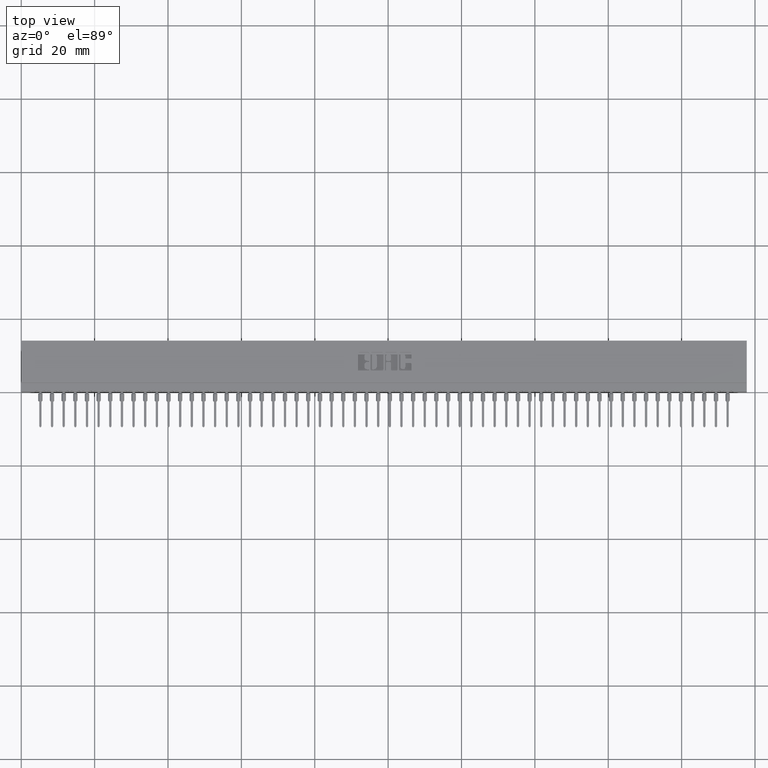
[diagram: clean part render]
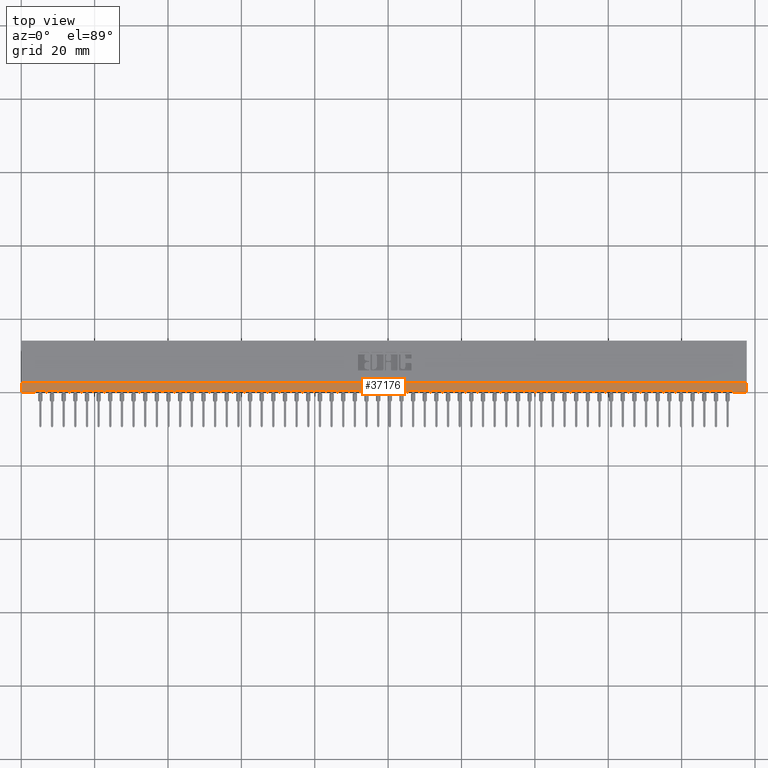
[diagram: same view with one face highlighted and labeled with its STEP entity id]
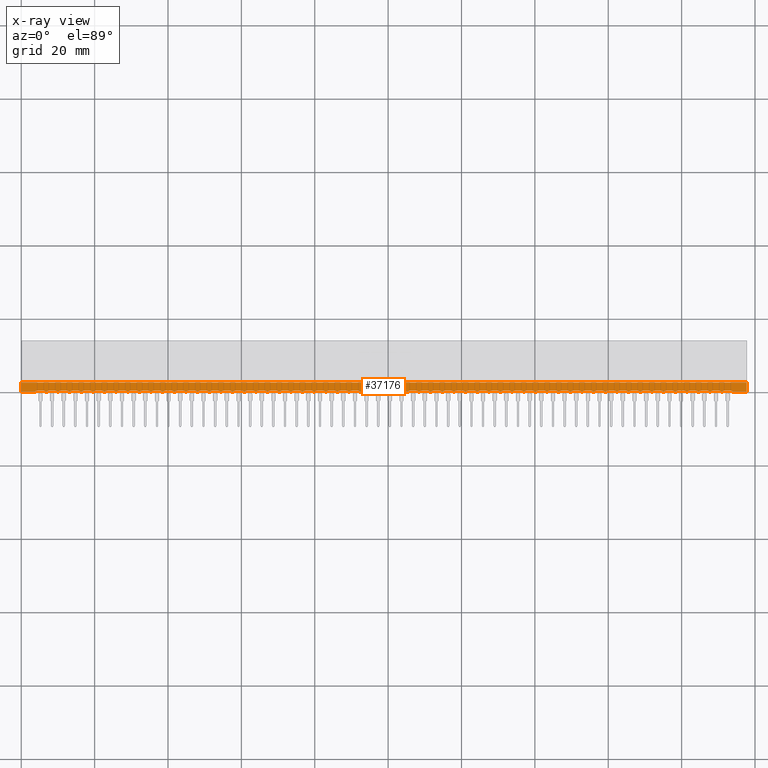
[diagram: x-ray of the same camera — body ghosted, the highlighted face saturated]
A machine part, top view. The second image highlights one B-rep face of the part: STEP entity #37176.
The next image is the same camera in x-ray: the body ghosted, the highlighted face saturated — about 0% of this face is hidden behind the body in this view.
In plain terms, the highlighted planar face has unit normal (0, 0, -1).
Its self-contained STEP definition (entity closure, byte-faithful):
#22 = CARTESIAN_POINT ( 'NONE',  ( 2.252499999999999503, 0.01499999999999997169, -0.02500000000000000486 ) ) ;
#77 = DIRECTION ( 'NONE',  ( 1.000000000000000000, -0.0000000000000000000, -2.307304048702925122E-16 ) ) ;
#232 = LINE ( 'NONE', #47931, #41931 ) ;
#246 = DIRECTION ( 'NONE',  ( 1.000000000000000000, 0.0000000000000000000, 0.0000000000000000000 ) ) ;
#256 = CIRCLE ( 'NONE', #34420, 0.01499999999999970281 ) ;
#302 = CARTESIAN_POINT ( 'NONE',  ( 0.2524999999999996692, 0.01499999999999997169, -0.02500000000000000486 ) ) ;
#621 = DIRECTION ( 'NONE',  ( -0.0000000000000000000, 0.0000000000000000000, 1.000000000000000000 ) ) ;
#746 = ORIENTED_EDGE ( 'NONE', *, *, #25358, .T. ) ;
#779 = VERTEX_POINT ( 'NONE', #11167 ) ;
#788 = DIRECTION ( 'NONE',  ( 1.000000000000000000, -0.0000000000000000000, -2.307304048702925122E-16 ) ) ;
#793 = AXIS2_PLACEMENT_3D ( 'NONE', #58698, #85410, #85858 ) ;
#1075 = DIRECTION ( 'NONE',  ( -0.0000000000000000000, 0.0000000000000000000, 1.000000000000000000 ) ) ;
#1093 = VERTEX_POINT ( 'NONE', #16327 ) ;
#1281 = VERTEX_POINT ( 'NONE', #56369 ) ;
#1386 = EDGE_CURVE ( 'NONE', #13701, #87846, #82219, .T. ) ;
#1401 = ORIENTED_EDGE ( 'NONE', *, *, #49566, .T. ) ;
#1437 = EDGE_CURVE ( 'NONE', #12539, #10594, #9958, .T. ) ;
#1454 = ORIENTED_EDGE ( 'NONE', *, *, #5869, .T. ) ;
#1462 = CARTESIAN_POINT ( 'NONE',  ( 0.3774999999999996692, 0.01499999999999997169, -0.02500000000000000486 ) ) ;
#1685 = LINE ( 'NONE', #15497, #51703 ) ;
#1772 = LINE ( 'NONE', #7148, #54639 ) ;
#1822 = LINE ( 'NONE', #13444, #52529 ) ;
#1955 = ORIENTED_EDGE ( 'NONE', *, *, #25720, .T. ) ;
#2093 = CARTESIAN_POINT ( 'NONE',  ( 7.058999999999999275, 0.01499999999999999424, -0.02500000000000003608 ) ) ;
#2222 = CARTESIAN_POINT ( 'NONE',  ( 1.892499999999999627, 0.01499999999999997169, -0.02500000000000000486 ) ) ;
#2316 = LINE ( 'NONE', #84721, #21846 ) ;
#2368 = LINE ( 'NONE', #50070, #67230 ) ;
#2430 = DIRECTION ( 'NONE',  ( 1.000000000000000000, -0.0000000000000000000, -2.307304048702925122E-16 ) ) ;
#2479 = ORIENTED_EDGE ( 'NONE', *, *, #2967, .T. ) ;
#2621 = AXIS2_PLACEMENT_3D ( 'NONE', #68125, #67220, #7058 ) ;
#2714 = LINE ( 'NONE', #10254, #59767 ) ;
#2825 = VERTEX_POINT ( 'NONE', #79908 ) ;
#2846 = DIRECTION ( 'NONE',  ( 1.000000000000000000, -0.0000000000000000000, -2.307304048702925122E-16 ) ) ;
#2895 = CIRCLE ( 'NONE', #51311, 0.01499999999999970281 ) ;
#2910 = ORIENTED_EDGE ( 'NONE', *, *, #52397, .T. ) ;
#2937 = CARTESIAN_POINT ( 'NONE',  ( 4.002499999999999503, 0.01499999999999997169, -0.02500000000000000486 ) ) ;
#2967 = EDGE_CURVE ( 'NONE', #22074, #87028, #26470, .T. ) ;
#3100 = CARTESIAN_POINT ( 'NONE',  ( 2.282499999999999307, 0.01499999999999997169, -0.02500000000000000486 ) ) ;
#3120 = FACE_OUTER_BOUND ( 'NONE', #25000, .T. ) ;
#3213 = DIRECTION ( 'NONE',  ( 1.000000000000000000, -0.0000000000000000000, -2.307304048702925122E-16 ) ) ;
#3226 = VERTEX_POINT ( 'NONE', #38819 ) ;
#3249 = AXIS2_PLACEMENT_3D ( 'NONE', #61314, #39458, #246 ) ;
#3278 = EDGE_CURVE ( 'NONE', #8528, #16633, #60643, .T. ) ;
#3473 = CARTESIAN_POINT ( 'NONE',  ( 4.407499999999999751, 0.01499999999999997169, -0.02500000000000000486 ) ) ;
#3538 = CARTESIAN_POINT ( 'NONE',  ( 2.782499999999999751, 0.01499999999999997169, -0.02500000000000000486 ) ) ;
#3562 = EDGE_CURVE ( 'NONE', #78139, #54817, #57473, .T. ) ;
#3580 = VERTEX_POINT ( 'NONE', #18221 ) ;
#3614 = ORIENTED_EDGE ( 'NONE', *, *, #8987, .T. ) ;
#3806 = CARTESIAN_POINT ( 'NONE',  ( 4.252499999999999503, 0.01499999999999997169, -0.02500000000000000486 ) ) ;
#3927 = VECTOR ( 'NONE', #64267, 39.37007874015748143 ) ;
#4104 = ORIENTED_EDGE ( 'NONE', *, *, #38381, .T. ) ;
#4194 = DIRECTION ( 'NONE',  ( -0.0000000000000000000, 0.0000000000000000000, 1.000000000000000000 ) ) ;
#4241 = CARTESIAN_POINT ( 'NONE',  ( 2.907499999999999307, 0.01499999999999997169, -0.02500000000000000486 ) ) ;
#4256 = CARTESIAN_POINT ( 'NONE',  ( 4.183999999999999275, 0.01499999999999999424, -0.02500000000000003608 ) ) ;
#4273 = VERTEX_POINT ( 'NONE', #69747 ) ;
#4600 = AXIS2_PLACEMENT_3D ( 'NONE', #62971, #43770, #23722 ) ;
#4778 = CIRCLE ( 'NONE', #13301, 0.01500000000000024925 ) ;
#5046 = CARTESIAN_POINT ( 'NONE',  ( 4.308999999999999275, 0.01499999999999999424, -0.02500000000000003608 ) ) ;
#5062 = ORIENTED_EDGE ( 'NONE', *, *, #70024, .T. ) ;
#5196 = VERTEX_POINT ( 'NONE', #12383 ) ;
#5260 = DIRECTION ( 'NONE',  ( 1.000000000000000000, -0.0000000000000000000, -2.307304048702925122E-16 ) ) ;
#5332 = EDGE_CURVE ( 'NONE', #42059, #57196, #71149, .T. ) ;
#5396 = DIRECTION ( 'NONE',  ( 1.000000000000000000, 0.0000000000000000000, 0.0000000000000000000 ) ) ;
#5689 = CARTESIAN_POINT ( 'NONE',  ( 2.142500000000000071, 0.01499999999999997169, -0.02500000000000000486 ) ) ;
#5773 = DIRECTION ( 'NONE',  ( 1.000000000000000000, 0.0000000000000000000, 0.0000000000000000000 ) ) ;
#5832 = DIRECTION ( 'NONE',  ( -0.0000000000000000000, 0.0000000000000000000, 1.000000000000000000 ) ) ;
#5869 = EDGE_CURVE ( 'NONE', #85847, #60431, #52731, .T. ) ;
#5964 = EDGE_CURVE ( 'NONE', #37060, #48759, #65570, .T. ) ;
#5971 = ORIENTED_EDGE ( 'NONE', *, *, #51252, .T. ) ;
#6071 = ORIENTED_EDGE ( 'NONE', *, *, #13119, .T. ) ;
#6170 = CARTESIAN_POINT ( 'NONE',  ( 3.002499999999999503, 0.01499999999999997169, -0.02500000000000000486 ) ) ;
#6247 = ORIENTED_EDGE ( 'NONE', *, *, #46663, .T. ) ;
#6337 = ORIENTED_EDGE ( 'NONE', *, *, #17670, .T. ) ;
#6501 = CARTESIAN_POINT ( 'NONE',  ( 6.407499999999999751, 0.01499999999999997169, -0.02500000000000000486 ) ) ;
#6538 = AXIS2_PLACEMENT_3D ( 'NONE', #49032, #77935, #16876 ) ;
#6557 = VECTOR ( 'NONE', #2846, 39.37007874015748143 ) ;
#6584 = VERTEX_POINT ( 'NONE', #30173 ) ;
#6590 = LINE ( 'NONE', #75216, #85664 ) ;
#6637 = CARTESIAN_POINT ( 'NONE',  ( 1.907499999999999529, 0.01499999999999997169, -0.02500000000000000486 ) ) ;
#6679 = VERTEX_POINT ( 'NONE', #18547 ) ;
#6768 = DIRECTION ( 'NONE',  ( 1.000000000000000000, -0.0000000000000000000, -2.307304048702925122E-16 ) ) ;
#6781 = DIRECTION ( 'NONE',  ( 1.000000000000000000, 0.0000000000000000000, 0.0000000000000000000 ) ) ;
#6969 = VERTEX_POINT ( 'NONE', #48398 ) ;
#7054 = DIRECTION ( 'NONE',  ( -0.0000000000000000000, 0.0000000000000000000, 1.000000000000000000 ) ) ;
#7058 = DIRECTION ( 'NONE',  ( 1.000000000000000000, 0.0000000000000000000, 0.0000000000000000000 ) ) ;
#7148 = CARTESIAN_POINT ( 'NONE',  ( 0.1839999999999996916, 0.01499999999999999424, -0.02500000000000003608 ) ) ;
#7247 = DIRECTION ( 'NONE',  ( -0.0000000000000000000, 0.0000000000000000000, 1.000000000000000000 ) ) ;
#7266 = LINE ( 'NONE', #74106, #21412 ) ;
#7274 = CARTESIAN_POINT ( 'NONE',  ( 1.642499999999999849, 0.01499999999999997169, -0.02500000000000000486 ) ) ;
#7297 = DIRECTION ( 'NONE',  ( 1.000000000000000000, 0.0000000000000000000, 0.0000000000000000000 ) ) ;
#7487 = VECTOR ( 'NONE', #61995, 39.37007874015748143 ) ;
#7515 = CARTESIAN_POINT ( 'NONE',  ( 6.877499999999998614, 0.01499999999999997169, -0.02500000000000000486 ) ) ;
#7594 = VECTOR ( 'NONE', #69521, 39.37007874015748143 ) ;
#7599 = DIRECTION ( 'NONE',  ( 1.000000000000000000, -0.0000000000000000000, -2.307304048702925122E-16 ) ) ;
#7790 = ORIENTED_EDGE ( 'NONE', *, *, #27972, .T. ) ;
#7987 = CARTESIAN_POINT ( 'NONE',  ( 6.002499999999999503, 0.01499999999999997169, -0.02500000000000000486 ) ) ;
#8112 = VERTEX_POINT ( 'NONE', #49293 ) ;
#8197 = DIRECTION ( 'NONE',  ( 1.000000000000000000, 0.0000000000000000000, 0.0000000000000000000 ) ) ;
#8244 = VECTOR ( 'NONE', #12825, 39.37007874015748143 ) ;
#8245 = CARTESIAN_POINT ( 'NONE',  ( 5.032499999999999751, 0.01499999999999997169, -0.02500000000000000486 ) ) ;
#8311 = EDGE_CURVE ( 'NONE', #58421, #6584, #16916, .T. ) ;
#8419 = CARTESIAN_POINT ( 'NONE',  ( 0.0000000000000000000, 0.0000000000000000000, -0.02500000000000000486 ) ) ;
#8441 = DIRECTION ( 'NONE',  ( 1.000000000000000000, -0.0000000000000000000, -2.307304048702925122E-16 ) ) ;
#8528 = VERTEX_POINT ( 'NONE', #21618 ) ;
#8645 = ORIENTED_EDGE ( 'NONE', *, *, #20185, .T. ) ;
#8987 = EDGE_CURVE ( 'NONE', #38540, #64700, #60612, .T. ) ;
#9242 = EDGE_CURVE ( 'NONE', #87028, #14150, #6590, .T. ) ;
#9262 = DIRECTION ( 'NONE',  ( 1.000000000000000000, 0.0000000000000000000, 0.0000000000000000000 ) ) ;
#9288 = CARTESIAN_POINT ( 'NONE',  ( 2.002499999999999503, 0.01499999999999997169, -0.02500000000000000486 ) ) ;
#9350 = CARTESIAN_POINT ( 'NONE',  ( 1.157499999999999751, 0.01499999999999997169, -0.02500000000000000486 ) ) ;
#9359 = DIRECTION ( 'NONE',  ( 1.000000000000000000, 0.0000000000000000000, 0.0000000000000000000 ) ) ;
#9608 = DIRECTION ( 'NONE',  ( 1.000000000000000000, 0.0000000000000000000, 0.0000000000000000000 ) ) ;
#9659 = VERTEX_POINT ( 'NONE', #8245 ) ;
#9682 = VERTEX_POINT ( 'NONE', #75989 ) ;
#9687 = DIRECTION ( 'NONE',  ( 1.000000000000000000, -0.0000000000000000000, -2.307304048702925122E-16 ) ) ;
#9740 = ORIENTED_EDGE ( 'NONE', *, *, #78366, .T. ) ;
#9805 = CARTESIAN_POINT ( 'NONE',  ( 7.002499999999999503, 0.01499999999999997169, -0.02500000000000000486 ) ) ;
#9958 = LINE ( 'NONE', #16226, #6557 ) ;
#10033 = LINE ( 'NONE', #23435, #84244 ) ;
#10057 = AXIS2_PLACEMENT_3D ( 'NONE', #21952, #49150, #11621 ) ;
#10216 = CARTESIAN_POINT ( 'NONE',  ( 3.502499999999999503, 0.01499999999999997169, -0.02500000000000000486 ) ) ;
#10254 = CARTESIAN_POINT ( 'NONE',  ( 0.3089999999999997193, 0.01499999999999999424, -0.02500000000000003608 ) ) ;
#10497 = VERTEX_POINT ( 'NONE', #41919 ) ;
#10518 = CARTESIAN_POINT ( 'NONE',  ( 6.142499999999999183, 0.01499999999999997169, -0.02500000000000000486 ) ) ;
#10594 = VERTEX_POINT ( 'NONE', #31482 ) ;
#10640 = CARTESIAN_POINT ( 'NONE',  ( 1.032499999999999751, 0.01499999999999997169, -0.02500000000000000486 ) ) ;
#10768 = VECTOR ( 'NONE', #9687, 39.37007874015748143 ) ;
#10792 = EDGE_CURVE ( 'NONE', #68418, #47867, #72872, .T. ) ;
#10814 = VERTEX_POINT ( 'NONE', #13177 ) ;
#10943 = CARTESIAN_POINT ( 'NONE',  ( 5.407499999999999751, 0.01499999999999997169, -0.02500000000000000486 ) ) ;
#11158 = VERTEX_POINT ( 'NONE', #73686 ) ;
#11167 = CARTESIAN_POINT ( 'NONE',  ( 4.282499999999999751, 0.01499999999999997169, -0.02500000000000000486 ) ) ;
#11354 = AXIS2_PLACEMENT_3D ( 'NONE', #62728, #42231, #69831 ) ;
#11409 = ORIENTED_EDGE ( 'NONE', *, *, #3562, .T. ) ;
#11428 = CIRCLE ( 'NONE', #78354, 0.01499999999999970281 ) ;
#11472 = CIRCLE ( 'NONE', #62707, 0.01499999999999970281 ) ;
#11503 = CARTESIAN_POINT ( 'NONE',  ( 6.683999999999999275, 0.01499999999999999424, -0.02500000000000003608 ) ) ;
#11519 = LINE ( 'NONE', #13739, #8244 ) ;
#11538 = CARTESIAN_POINT ( 'NONE',  ( 6.502499999999999503, 0.01499999999999997169, -0.02500000000000000486 ) ) ;
#11609 = EDGE_CURVE ( 'NONE', #1281, #5196, #19208, .T. ) ;
#11621 = DIRECTION ( 'NONE',  ( 1.000000000000000000, 0.0000000000000000000, 0.0000000000000000000 ) ) ;
#11735 = VECTOR ( 'NONE', #19647, 39.37007874015748143 ) ;
#11827 = CARTESIAN_POINT ( 'NONE',  ( 6.892499999999998295, 0.01499999999999997169, -0.02500000000000000486 ) ) ;
#11937 = AXIS2_PLACEMENT_3D ( 'NONE', #72987, #60061, #39552 ) ;
#11949 = VECTOR ( 'NONE', #49389, 39.37007874015748143 ) ;
#12026 = VERTEX_POINT ( 'NONE', #68570 ) ;
#12063 = ORIENTED_EDGE ( 'NONE', *, *, #41628, .T. ) ;
#12067 = DIRECTION ( 'NONE',  ( -0.0000000000000000000, 0.0000000000000000000, 1.000000000000000000 ) ) ;
#12076 = CARTESIAN_POINT ( 'NONE',  ( 6.642499999999999183, 0.01499999999999997169, -0.02500000000000000486 ) ) ;
#12098 = DIRECTION ( 'NONE',  ( 1.000000000000000000, 0.0000000000000000000, 0.0000000000000000000 ) ) ;
#12383 = CARTESIAN_POINT ( 'NONE',  ( 2.752499999999999503, 0.01499999999999997169, -0.02500000000000000486 ) ) ;
#12491 = CARTESIAN_POINT ( 'NONE',  ( 6.058999999999999275, 0.01499999999999999424, -0.02500000000000003608 ) ) ;
#12499 = DIRECTION ( 'NONE',  ( -0.0000000000000000000, 0.0000000000000000000, 1.000000000000000000 ) ) ;
#12523 = CARTESIAN_POINT ( 'NONE',  ( 2.683999999999999719, 0.01499999999999999424, -0.02500000000000003608 ) ) ;
#12539 = VERTEX_POINT ( 'NONE', #14035 ) ;
#12590 = ORIENTED_EDGE ( 'NONE', *, *, #54374, .T. ) ;
#12717 = EDGE_CURVE ( 'NONE', #51977, #17411, #74465, .T. ) ;
#12751 = CARTESIAN_POINT ( 'NONE',  ( 1.782499999999999529, 0.01499999999999997169, -0.02500000000000000486 ) ) ;
#12825 = DIRECTION ( 'NONE',  ( 1.000000000000000000, -0.0000000000000000000, -2.307304048702925122E-16 ) ) ;
#12860 = ORIENTED_EDGE ( 'NONE', *, *, #12717, .T. ) ;
#12879 = CARTESIAN_POINT ( 'NONE',  ( 1.267499999999999627, 0.01499999999999997169, -0.02500000000000000486 ) ) ;
#12920 = CIRCLE ( 'NONE', #10057, 0.01499999999999970281 ) ;
#12983 = DIRECTION ( 'NONE',  ( 1.000000000000000000, -0.0000000000000000000, -2.307304048702925122E-16 ) ) ;
#12992 = ORIENTED_EDGE ( 'NONE', *, *, #70280, .T. ) ;
#12998 = VECTOR ( 'NONE', #53905, 39.37007874015748143 ) ;
#13110 = VECTOR ( 'NONE', #43416, 39.37007874015748143 ) ;
#13119 = EDGE_CURVE ( 'NONE', #30171, #80097, #78348, .T. ) ;
#13139 = CARTESIAN_POINT ( 'NONE',  ( 7.407499999999998863, 0.01499999999999997169, -0.02500000000000000486 ) ) ;
#13152 = DIRECTION ( 'NONE',  ( 1.000000000000000000, 0.0000000000000000000, 0.0000000000000000000 ) ) ;
#13177 = CARTESIAN_POINT ( 'NONE',  ( 5.657499999999999751, 0.01499999999999997169, -0.02500000000000000486 ) ) ;
#13301 = AXIS2_PLACEMENT_3D ( 'NONE', #21399, #41028, #55296 ) ;
#13383 = CARTESIAN_POINT ( 'NONE',  ( 2.517499999999999627, 0.01499999999999997169, -0.02500000000000000486 ) ) ;
#13444 = CARTESIAN_POINT ( 'NONE',  ( 1.558999999999999719, 0.01499999999999999424, -0.02500000000000003608 ) ) ;
#13466 = CARTESIAN_POINT ( 'NONE',  ( 2.392499999999999627, 0.01499999999999997169, -0.02500000000000000486 ) ) ;
#13549 = AXIS2_PLACEMENT_3D ( 'NONE', #58429, #53843, #37920 ) ;
#13701 = VERTEX_POINT ( 'NONE', #13139 ) ;
#13728 = DIRECTION ( 'NONE',  ( -0.0000000000000000000, 0.0000000000000000000, 1.000000000000000000 ) ) ;
#13739 = CARTESIAN_POINT ( 'NONE',  ( 6.933999999999998387, 0.01499999999999999424, -0.02500000000000003608 ) ) ;
#13843 = DIRECTION ( 'NONE',  ( -0.0000000000000000000, 0.0000000000000000000, 1.000000000000000000 ) ) ;
#13897 = CARTESIAN_POINT ( 'NONE',  ( 3.657499999999999307, 0.01499999999999997169, -0.02500000000000000486 ) ) ;
#14035 = CARTESIAN_POINT ( 'NONE',  ( 5.282499999999998863, 0.01499999999999997169, -0.02500000000000000486 ) ) ;
#14150 = VERTEX_POINT ( 'NONE', #67872 ) ;
#14163 = EDGE_CURVE ( 'NONE', #2825, #86082, #46230, .T. ) ;
#14191 = EDGE_CURVE ( 'NONE', #48759, #16800, #59024, .T. ) ;
#14282 = CARTESIAN_POINT ( 'NONE',  ( 3.642499999999999627, 0.01499999999999997169, -0.02500000000000000486 ) ) ;
#14310 = AXIS2_PLACEMENT_3D ( 'NONE', #31695, #12499, #31244 ) ;
#14334 = ORIENTED_EDGE ( 'NONE', *, *, #65734, .T. ) ;
#14441 = VECTOR ( 'NONE', #58251, 39.37007874015748143 ) ;
#14467 = CARTESIAN_POINT ( 'NONE',  ( 2.407499999999999751, 0.01499999999999997169, -0.02500000000000000486 ) ) ;
#14728 = AXIS2_PLACEMENT_3D ( 'NONE', #14860, #35346, #7297 ) ;
#14822 = VECTOR ( 'NONE', #54279, 39.37007874015748143 ) ;
#14860 = CARTESIAN_POINT ( 'NONE',  ( 5.267499999999999183, 0.01499999999999997169, -0.02500000000000000486 ) ) ;
#15097 = CARTESIAN_POINT ( 'NONE',  ( 6.517499999999999183, 0.01499999999999997169, -0.02500000000000000486 ) ) ;
#15117 = VERTEX_POINT ( 'NONE', #3100 ) ;
#15157 = VERTEX_POINT ( 'NONE', #84405 ) ;
#15166 = LINE ( 'NONE', #28118, #29221 ) ;
#15400 = CARTESIAN_POINT ( 'NONE',  ( 5.558999999999999275, 0.01499999999999999424, -0.02500000000000003608 ) ) ;
#15497 = CARTESIAN_POINT ( 'NONE',  ( 7.785000000000000142, 0.1000000000000000056, -0.02500000000000000486 ) ) ;
#15522 = DIRECTION ( 'NONE',  ( 1.000000000000000000, -0.0000000000000000000, -2.307304048702925122E-16 ) ) ;
#15691 = ORIENTED_EDGE ( 'NONE', *, *, #75797, .T. ) ;
#15895 = ORIENTED_EDGE ( 'NONE', *, *, #66954, .T. ) ;
#15915 = CARTESIAN_POINT ( 'NONE',  ( 7.785000000000000142, 0.0000000000000000000, -0.02500000000000000486 ) ) ;
#16068 = DIRECTION ( 'NONE',  ( -0.0000000000000000000, 0.0000000000000000000, 1.000000000000000000 ) ) ;
#16180 = AXIS2_PLACEMENT_3D ( 'NONE', #13383, #13843, #74883 ) ;
#16199 = ORIENTED_EDGE ( 'NONE', *, *, #1386, .T. ) ;
#16226 = CARTESIAN_POINT ( 'NONE',  ( 5.308999999999998387, 0.01499999999999999424, -0.02500000000000003608 ) ) ;
#16229 = LINE ( 'NONE', #77713, #44387 ) ;
#16304 = DIRECTION ( 'NONE',  ( -0.0000000000000000000, 0.0000000000000000000, 1.000000000000000000 ) ) ;
#16327 = CARTESIAN_POINT ( 'NONE',  ( 7.282499999999999751, 0.01499999999999997169, -0.02500000000000000486 ) ) ;
#16456 = ORIENTED_EDGE ( 'NONE', *, *, #56790, .T. ) ;
#16493 = DIRECTION ( 'NONE',  ( -0.0000000000000000000, 0.0000000000000000000, 1.000000000000000000 ) ) ;
#16596 = VECTOR ( 'NONE', #50794, 39.37007874015748143 ) ;
#16633 = VERTEX_POINT ( 'NONE', #2937 ) ;
#16670 = LINE ( 'NONE', #77716, #45068 ) ;
#16681 = VERTEX_POINT ( 'NONE', #10943 ) ;
#16780 = VERTEX_POINT ( 'NONE', #39442 ) ;
#16798 = ORIENTED_EDGE ( 'NONE', *, *, #18894, .T. ) ;
#16800 = VERTEX_POINT ( 'NONE', #45707 ) ;
#16861 = DIRECTION ( 'NONE',  ( 1.000000000000000000, -0.0000000000000000000, -2.307304048702925122E-16 ) ) ;
#16869 = DIRECTION ( 'NONE',  ( 1.000000000000000000, -0.0000000000000000000, -2.307304048702925122E-16 ) ) ;
#16876 = DIRECTION ( 'NONE',  ( 1.000000000000000000, 0.0000000000000000000, 0.0000000000000000000 ) ) ;
#16916 = CIRCLE ( 'NONE', #45384, 0.01499999999999970281 ) ;
#16931 = CARTESIAN_POINT ( 'NONE',  ( 7.785000000000000142, 0.0000000000000000000, -0.02500000000000000486 ) ) ;
#17157 = CIRCLE ( 'NONE', #42826, 0.01500000000000024925 ) ;
#17263 = DIRECTION ( 'NONE',  ( 1.000000000000000000, 0.0000000000000000000, 0.0000000000000000000 ) ) ;
#17296 = CARTESIAN_POINT ( 'NONE',  ( 0.9339999999999996083, 0.01499999999999999424, -0.02500000000000003608 ) ) ;
#17411 = VERTEX_POINT ( 'NONE', #76290 ) ;
#17670 = EDGE_CURVE ( 'NONE', #54817, #88139, #36487, .T. ) ;
#17881 = VERTEX_POINT ( 'NONE', #47034 ) ;
#17959 = EDGE_CURVE ( 'NONE', #3580, #83250, #72126, .T. ) ;
#18031 = DIRECTION ( 'NONE',  ( 1.000000000000000000, 0.0000000000000000000, 0.0000000000000000000 ) ) ;
#18089 = VECTOR ( 'NONE', #53961, 39.37007874015748143 ) ;
#18156 = AXIS2_PLACEMENT_3D ( 'NONE', #10518, #24353, #71140 ) ;
#18221 = CARTESIAN_POINT ( 'NONE',  ( 3.532499999999999751, 0.01499999999999997169, -0.02500000000000000486 ) ) ;
#18224 = CARTESIAN_POINT ( 'NONE',  ( 0.7824999999999997513, 0.01499999999999997169, -0.02500000000000000486 ) ) ;
#18238 = EDGE_CURVE ( 'NONE', #16681, #80392, #16670, .T. ) ;
#18429 = LINE ( 'NONE', #2093, #76943 ) ;
#18468 = EDGE_CURVE ( 'NONE', #39950, #50069, #70923, .T. ) ;
#18547 = CARTESIAN_POINT ( 'NONE',  ( 7.785000000000000142, 0.0000000000000000000, -0.02500000000000000486 ) ) ;
#18752 = CARTESIAN_POINT ( 'NONE',  ( 3.683999999999999275, 0.01499999999999999424, -0.02500000000000003608 ) ) ;
#18894 = EDGE_CURVE ( 'NONE', #45605, #6969, #50347, .T. ) ;
#18994 = VERTEX_POINT ( 'NONE', #45402 ) ;
#19158 = VERTEX_POINT ( 'NONE', #81895 ) ;
#19208 = LINE ( 'NONE', #12523, #11735 ) ;
#19246 = CARTESIAN_POINT ( 'NONE',  ( 5.252499999999999503, 0.01499999999999997169, -0.02500000000000000486 ) ) ;
#19269 = CARTESIAN_POINT ( 'NONE',  ( 3.767499999999999627, 0.01499999999999997169, -0.02500000000000000486 ) ) ;
#19319 = CARTESIAN_POINT ( 'NONE',  ( 7.627499999999999503, 0.01499999999999997169, -0.02500000000000000486 ) ) ;
#19443 = EDGE_CURVE ( 'NONE', #56448, #53825, #86456, .T. ) ;
#19467 = DIRECTION ( 'NONE',  ( -0.0000000000000000000, 0.0000000000000000000, 1.000000000000000000 ) ) ;
#19647 = DIRECTION ( 'NONE',  ( 1.000000000000000000, -0.0000000000000000000, -2.307304048702925122E-16 ) ) ;
#19715 = CARTESIAN_POINT ( 'NONE',  ( 1.407499999999999751, 0.01499999999999997169, -0.02500000000000000486 ) ) ;
#19908 = CARTESIAN_POINT ( 'NONE',  ( 0.2674999999999996825, 0.01499999999999997169, -0.02500000000000000486 ) ) ;
#19996 = VECTOR ( 'NONE', #84075, 39.37007874015748143 ) ;
#20043 = VERTEX_POINT ( 'NONE', #3806 ) ;
#20185 = EDGE_CURVE ( 'NONE', #88139, #59424, #31879, .T. ) ;
#20197 = DIRECTION ( 'NONE',  ( 1.000000000000000000, 0.0000000000000000000, 0.0000000000000000000 ) ) ;
#20370 = ORIENTED_EDGE ( 'NONE', *, *, #67159, .T. ) ;
#20479 = EDGE_CURVE ( 'NONE', #27776, #11158, #88000, .T. ) ;
#20764 = DIRECTION ( 'NONE',  ( -0.0000000000000000000, 0.0000000000000000000, 1.000000000000000000 ) ) ;
#20894 = CIRCLE ( 'NONE', #69244, 0.01500000000000024925 ) ;
#20912 = DIRECTION ( 'NONE',  ( 1.000000000000000000, 0.0000000000000000000, 0.0000000000000000000 ) ) ;
#20930 = AXIS2_PLACEMENT_3D ( 'NONE', #16931, #44122, #71306 ) ;
#20966 = DIRECTION ( 'NONE',  ( 1.000000000000000000, 0.0000000000000000000, 0.0000000000000000000 ) ) ;
#21077 = DIRECTION ( 'NONE',  ( 1.000000000000000000, 0.0000000000000000000, 0.0000000000000000000 ) ) ;
#21223 = DIRECTION ( 'NONE',  ( 1.000000000000000000, -0.0000000000000000000, -2.307304048702925122E-16 ) ) ;
#21399 = CARTESIAN_POINT ( 'NONE',  ( 4.017500000000000071, 0.01499999999999997169, -0.02500000000000000486 ) ) ;
#21412 = VECTOR ( 'NONE', #27340, 39.37007874015748143 ) ;
#21423 = CARTESIAN_POINT ( 'NONE',  ( 4.058999999999999275, 0.01499999999999999424, -0.02500000000000003608 ) ) ;
#21442 = DIRECTION ( 'NONE',  ( 1.000000000000000000, -0.0000000000000000000, -2.307304048702925122E-16 ) ) ;
#21463 = CARTESIAN_POINT ( 'NONE',  ( 2.433999999999999719, 0.01499999999999999424, -0.02500000000000003608 ) ) ;
#21573 = AXIS2_PLACEMENT_3D ( 'NONE', #84688, #85562, #65084 ) ;
#21618 = CARTESIAN_POINT ( 'NONE',  ( 3.907499999999999751, 0.01499999999999997169, -0.02500000000000000486 ) ) ;
#21620 = VECTOR ( 'NONE', #56823, 39.37007874015748143 ) ;
#21654 = VERTEX_POINT ( 'NONE', #52743 ) ;
#21668 = CARTESIAN_POINT ( 'NONE',  ( 6.183999999999998387, 0.01499999999999999424, -0.02500000000000003608 ) ) ;
#21677 = ORIENTED_EDGE ( 'NONE', *, *, #84350, .T. ) ;
#21773 = ORIENTED_EDGE ( 'NONE', *, *, #73864, .T. ) ;
#21801 = EDGE_CURVE ( 'NONE', #73171, #78121, #78184, .T. ) ;
#21846 = VECTOR ( 'NONE', #44181, 39.37007874015748143 ) ;
#21890 = ORIENTED_EDGE ( 'NONE', *, *, #38994, .T. ) ;
#21952 = CARTESIAN_POINT ( 'NONE',  ( 5.767499999999999183, 0.01499999999999997169, -0.02500000000000000486 ) ) ;
#22074 = VERTEX_POINT ( 'NONE', #53511 ) ;
#22241 = CIRCLE ( 'NONE', #62141, 0.01500000000000001159 ) ;
#22312 = ORIENTED_EDGE ( 'NONE', *, *, #61571, .T. ) ;
#22629 = CARTESIAN_POINT ( 'NONE',  ( 5.142499999999999183, 0.01499999999999997169, -0.02500000000000000486 ) ) ;
#22639 = VERTEX_POINT ( 'NONE', #67197 ) ;
#22678 = EDGE_CURVE ( 'NONE', #6969, #32490, #76926, .T. ) ;
#22762 = LINE ( 'NONE', #28588, #64418 ) ;
#22849 = CARTESIAN_POINT ( 'NONE',  ( 1.127499999999999725, 0.01499999999999997169, -0.02500000000000000486 ) ) ;
#22990 = CARTESIAN_POINT ( 'NONE',  ( 4.907499999999999751, 0.01499999999999997169, -0.02500000000000000486 ) ) ;
#23019 = CIRCLE ( 'NONE', #42996, 0.01499999999999997689 ) ;
#23042 = ORIENTED_EDGE ( 'NONE', *, *, #63586, .T. ) ;
#23144 = ORIENTED_EDGE ( 'NONE', *, *, #74754, .T. ) ;
#23226 = LINE ( 'NONE', #49102, #26008 ) ;
#23255 = ORIENTED_EDGE ( 'NONE', *, *, #30742, .T. ) ;
#23312 = CARTESIAN_POINT ( 'NONE',  ( 6.782499999999998863, 0.01499999999999997169, -0.02500000000000000486 ) ) ;
#23356 = ORIENTED_EDGE ( 'NONE', *, *, #29018, .T. ) ;
#23386 = ORIENTED_EDGE ( 'NONE', *, *, #22678, .T. ) ;
#23412 = CARTESIAN_POINT ( 'NONE',  ( 4.377499999999999503, 0.01499999999999997169, -0.02500000000000000486 ) ) ;
#23435 = CARTESIAN_POINT ( 'NONE',  ( 5.058999999999998387, 0.01499999999999999424, -0.02500000000000003608 ) ) ;
#23657 = AXIS2_PLACEMENT_3D ( 'NONE', #45556, #31284, #12098 ) ;
#23722 = DIRECTION ( 'NONE',  ( 1.000000000000000000, 0.0000000000000000000, 0.0000000000000000000 ) ) ;
#23931 = CARTESIAN_POINT ( 'NONE',  ( 2.808999999999999275, 0.01499999999999999424, -0.02500000000000003608 ) ) ;
#23969 = ORIENTED_EDGE ( 'NONE', *, *, #18468, .T. ) ;
#24353 = DIRECTION ( 'NONE',  ( -0.0000000000000000000, 0.0000000000000000000, 1.000000000000000000 ) ) ;
#24391 = ORIENTED_EDGE ( 'NONE', *, *, #80403, .T. ) ;
#24414 = DIRECTION ( 'NONE',  ( 1.000000000000000000, 0.0000000000000000000, 0.0000000000000000000 ) ) ;
#24626 = DIRECTION ( 'NONE',  ( 1.000000000000000000, -0.0000000000000000000, -2.307304048702925122E-16 ) ) ;
#24844 = EDGE_CURVE ( 'NONE', #80958, #83926, #83135, .T. ) ;
#24976 = EDGE_CURVE ( 'NONE', #60431, #68702, #62710, .T. ) ;
#25000 = EDGE_LOOP ( 'NONE', ( #5062, #21773, #75717, #64971, #44310, #80104, #83942, #38660, #34761, #60345, #51504, #48004, #12860, #83494, #47004, #2910, #3614, #1401, #29943, #78704, #68198, #6071, #88012, #11409, #6337, #8645, #32640, #84547, #73435, #42565, #71511, #67292, #59107, #85800, #81955, #12063, #23042, #23255, #85205, #16798, #23386, #81805, #70255, #14334, #44719, #61692, #15691, #68900, #83479, #65808, #59584, #78398, #71531, #70537, #76017, #746, #1955, #78115, #61430, #12590, #1454, #39268, #7790, #29356, #35336, #33936, #50468, #21890, #42219, #25807, #44093, #62699, #53879, #23144, #22312, #67519, #77952, #55499, #75990, #9740, #41695, #79946, #27165, #25629, #67152, #49147, #21677, #60168, #47040, #23969, #6247, #36609, #54245, #29063, #5971, #84353, #16456, #43590, #42068, #33521, #78259, #4104, #86853, #72360, #28121, #66109, #33174, #23356, #69161, #53104, #30190, #45495, #86201, #62371, #24391, #15895, #66084, #20370, #52504, #12992, #2479, #45946, #26804, #66839, #61020, #16199 ) ) ;
#25236 = DIRECTION ( 'NONE',  ( -0.0000000000000000000, 0.0000000000000000000, 1.000000000000000000 ) ) ;
#25358 = EDGE_CURVE ( 'NONE', #86145, #21654, #80875, .T. ) ;
#25400 = EDGE_CURVE ( 'NONE', #63789, #64240, #232, .T. ) ;
#25604 = LINE ( 'NONE', #51469, #86282 ) ;
#25607 = VECTOR ( 'NONE', #21442, 39.37007874015748143 ) ;
#25629 = ORIENTED_EDGE ( 'NONE', *, *, #65184, .T. ) ;
#25720 = EDGE_CURVE ( 'NONE', #21654, #62535, #37706, .T. ) ;
#25807 = ORIENTED_EDGE ( 'NONE', *, *, #3278, .T. ) ;
#26008 = VECTOR ( 'NONE', #69576, 39.37007874015748143 ) ;
#26019 = EDGE_CURVE ( 'NONE', #79072, #64261, #64748, .T. ) ;
#26067 = CARTESIAN_POINT ( 'NONE',  ( 4.267500000000000071, 0.01499999999999997169, -0.02500000000000000486 ) ) ;
#26447 = EDGE_CURVE ( 'NONE', #31116, #35943, #42060, .T. ) ;
#26470 = CIRCLE ( 'NONE', #44972, 0.01499999999999970281 ) ;
#26720 = CARTESIAN_POINT ( 'NONE',  ( 3.267499999999999627, 0.01499999999999997169, -0.02500000000000000486 ) ) ;
#26804 = ORIENTED_EDGE ( 'NONE', *, *, #35156, .T. ) ;
#27095 = VECTOR ( 'NONE', #7599, 39.37007874015748143 ) ;
#27165 = ORIENTED_EDGE ( 'NONE', *, *, #20479, .T. ) ;
#27242 = CARTESIAN_POINT ( 'NONE',  ( 7.785000000000000142, 0.1000000000000000056, -0.02500000000000000486 ) ) ;
#27340 = DIRECTION ( 'NONE',  ( 1.000000000000000000, -0.0000000000000000000, -2.307304048702925122E-16 ) ) ;
#27383 = LINE ( 'NONE', #54110, #68548 ) ;
#27654 = EDGE_CURVE ( 'NONE', #70718, #15117, #77717, .T. ) ;
#27776 = VERTEX_POINT ( 'NONE', #60687 ) ;
#27791 = DIRECTION ( 'NONE',  ( -0.0000000000000000000, 0.0000000000000000000, 1.000000000000000000 ) ) ;
#27972 = EDGE_CURVE ( 'NONE', #68702, #3580, #32306, .T. ) ;
#27997 = CIRCLE ( 'NONE', #52223, 0.01499999999999997689 ) ;
#28010 = LINE ( 'NONE', #35990, #11949 ) ;
#28090 = DIRECTION ( 'NONE',  ( 1.000000000000000000, 0.0000000000000000000, 0.0000000000000000000 ) ) ;
#28118 = CARTESIAN_POINT ( 'NONE',  ( 0.8089999999999997193, 0.01499999999999999424, -0.02500000000000003608 ) ) ;
#28121 = ORIENTED_EDGE ( 'NONE', *, *, #19443, .T. ) ;
#28581 = CARTESIAN_POINT ( 'NONE',  ( 6.127499999999999503, 0.01499999999999997169, -0.02500000000000000486 ) ) ;
#28582 = CARTESIAN_POINT ( 'NONE',  ( 0.4339999999999996638, 0.01499999999999999424, -0.02500000000000003608 ) ) ;
#28588 = CARTESIAN_POINT ( 'NONE',  ( 4.683999999999999275, 0.01499999999999999424, -0.02500000000000003608 ) ) ;
#28806 = VERTEX_POINT ( 'NONE', #86976 ) ;
#28913 = DIRECTION ( 'NONE',  ( 1.000000000000000000, 0.0000000000000000000, 0.0000000000000000000 ) ) ;
#29004 = CARTESIAN_POINT ( 'NONE',  ( 7.267499999999999183, 0.01499999999999997169, -0.02500000000000000486 ) ) ;
#29018 = EDGE_CURVE ( 'NONE', #47867, #8112, #41091, .T. ) ;
#29063 = ORIENTED_EDGE ( 'NONE', *, *, #18238, .T. ) ;
#29221 = VECTOR ( 'NONE', #83329, 39.37007874015748143 ) ;
#29356 = ORIENTED_EDGE ( 'NONE', *, *, #17959, .T. ) ;
#29380 = CARTESIAN_POINT ( 'NONE',  ( 1.933999999999999719, 0.01499999999999999424, -0.02500000000000003608 ) ) ;
#29600 = VERTEX_POINT ( 'NONE', #78769 ) ;
#29776 = DIRECTION ( 'NONE',  ( 1.000000000000000000, -0.0000000000000000000, -2.307304048702925122E-16 ) ) ;
#29908 = DIRECTION ( 'NONE',  ( 1.000000000000000000, -0.0000000000000000000, -2.307304048702925122E-16 ) ) ;
#29943 = ORIENTED_EDGE ( 'NONE', *, *, #21801, .T. ) ;
#30040 = EDGE_CURVE ( 'NONE', #12026, #61640, #27997, .T. ) ;
#30160 = VERTEX_POINT ( 'NONE', #76276 ) ;
#30171 = VERTEX_POINT ( 'NONE', #54495 ) ;
#30172 = DIRECTION ( 'NONE',  ( -0.0000000000000000000, -1.000000000000000000, -0.0000000000000000000 ) ) ;
#30173 = CARTESIAN_POINT ( 'NONE',  ( 6.907499999999999751, 0.01499999999999997169, -0.02500000000000000486 ) ) ;
#30190 = ORIENTED_EDGE ( 'NONE', *, *, #81384, .T. ) ;
#30245 = CARTESIAN_POINT ( 'NONE',  ( 0.1574999999999997236, 0.01499999999999997169, -0.02500000000000000486 ) ) ;
#30397 = CARTESIAN_POINT ( 'NONE',  ( 1.282499999999999751, 0.01499999999999997169, -0.02500000000000000486 ) ) ;
#30480 = CIRCLE ( 'NONE', #36205, 0.01499999999999970281 ) ;
#30545 = EDGE_CURVE ( 'NONE', #87711, #10497, #45477, .T. ) ;
#30609 = CARTESIAN_POINT ( 'NONE',  ( 5.157499999999999751, 0.01499999999999997169, -0.02500000000000000486 ) ) ;
#30644 = DIRECTION ( 'NONE',  ( -0.0000000000000000000, 0.0000000000000000000, 1.000000000000000000 ) ) ;
#30657 = VERTEX_POINT ( 'NONE', #7987 ) ;
#30725 = VERTEX_POINT ( 'NONE', #30245 ) ;
#30737 = CARTESIAN_POINT ( 'NONE',  ( 7.517499999999998295, 0.01499999999999997169, -0.02500000000000000486 ) ) ;
#30742 = EDGE_CURVE ( 'NONE', #59499, #38736, #50757, .T. ) ;
#30894 = DIRECTION ( 'NONE',  ( -0.0000000000000000000, 0.0000000000000000000, 1.000000000000000000 ) ) ;
#31116 = VERTEX_POINT ( 'NONE', #77806 ) ;
#31244 = DIRECTION ( 'NONE',  ( 1.000000000000000000, 0.0000000000000000000, 0.0000000000000000000 ) ) ;
#31284 = DIRECTION ( 'NONE',  ( -0.0000000000000000000, 0.0000000000000000000, 1.000000000000000000 ) ) ;
#31309 = DIRECTION ( 'NONE',  ( 1.000000000000000000, 0.0000000000000000000, 0.0000000000000000000 ) ) ;
#31323 = VERTEX_POINT ( 'NONE', #4241 ) ;
#31326 = CARTESIAN_POINT ( 'NONE',  ( 4.767500000000000071, 0.01499999999999997169, -0.02500000000000000486 ) ) ;
#31471 = VERTEX_POINT ( 'NONE', #73916 ) ;
#31482 = CARTESIAN_POINT ( 'NONE',  ( 5.377499999999999503, 0.01499999999999997169, -0.02500000000000000486 ) ) ;
#31499 = LINE ( 'NONE', #56631, #14441 ) ;
#31542 = VECTOR ( 'NONE', #33884, 39.37007874015748143 ) ;
#31646 = CIRCLE ( 'NONE', #4600, 0.01499999999999997689 ) ;
#31695 = CARTESIAN_POINT ( 'NONE',  ( 3.392500000000000071, 0.01499999999999997169, -0.02500000000000000486 ) ) ;
#31725 = CIRCLE ( 'NONE', #45915, 0.01499999999999997689 ) ;
#31784 = CARTESIAN_POINT ( 'NONE',  ( 3.142499999999999627, 0.01499999999999997169, -0.02500000000000000486 ) ) ;
#31879 = LINE ( 'NONE', #52838, #77999 ) ;
#31924 = DIRECTION ( 'NONE',  ( 1.000000000000000000, 0.0000000000000000000, 0.0000000000000000000 ) ) ;
#32129 = DIRECTION ( 'NONE',  ( 1.000000000000000000, -0.0000000000000000000, -2.307304048702925122E-16 ) ) ;
#32224 = DIRECTION ( 'NONE',  ( -0.0000000000000000000, 0.0000000000000000000, 1.000000000000000000 ) ) ;
#32306 = CIRCLE ( 'NONE', #75001, 0.01500000000000024925 ) ;
#32399 = EDGE_CURVE ( 'NONE', #86082, #22639, #1822, .T. ) ;
#32490 = VERTEX_POINT ( 'NONE', #36136 ) ;
#32640 = ORIENTED_EDGE ( 'NONE', *, *, #42528, .T. ) ;
#32656 = DIRECTION ( 'NONE',  ( 1.000000000000000000, 0.0000000000000000000, 0.0000000000000000000 ) ) ;
#33016 = DIRECTION ( 'NONE',  ( 1.000000000000000000, 0.0000000000000000000, 0.0000000000000000000 ) ) ;
#33028 = EDGE_CURVE ( 'NONE', #44400, #1281, #78144, .T. ) ;
#33138 = EDGE_CURVE ( 'NONE', #60055, #63582, #39718, .T. ) ;
#33174 = ORIENTED_EDGE ( 'NONE', *, *, #10792, .T. ) ;
#33521 = ORIENTED_EDGE ( 'NONE', *, *, #84836, .T. ) ;
#33548 = VECTOR ( 'NONE', #21223, 39.37007874015748143 ) ;
#33592 = VECTOR ( 'NONE', #32129, 39.37007874015748143 ) ;
#33725 = DIRECTION ( 'NONE',  ( 1.000000000000000000, 0.0000000000000000000, 0.0000000000000000000 ) ) ;
#33747 = LINE ( 'NONE', #47571, #56677 ) ;
#33762 = EDGE_CURVE ( 'NONE', #63582, #51977, #2714, .T. ) ;
#33817 = CARTESIAN_POINT ( 'NONE',  ( 6.282499999999999751, 0.01499999999999997169, -0.02500000000000000486 ) ) ;
#33884 = DIRECTION ( 'NONE',  ( 1.000000000000000000, -0.0000000000000000000, -2.307304048702925122E-16 ) ) ;
#33936 = ORIENTED_EDGE ( 'NONE', *, *, #5964, .T. ) ;
#33959 = CARTESIAN_POINT ( 'NONE',  ( 6.308999999999998387, 0.01499999999999999424, -0.02500000000000003608 ) ) ;
#34012 = CARTESIAN_POINT ( 'NONE',  ( 7.142499999999999183, 0.01499999999999997169, -0.02500000000000000486 ) ) ;
#34054 = DIRECTION ( 'NONE',  ( 1.000000000000000000, 0.0000000000000000000, 0.0000000000000000000 ) ) ;
#34098 = VERTEX_POINT ( 'NONE', #3473 ) ;
#34142 = VECTOR ( 'NONE', #86951, 39.37007874015748143 ) ;
#34356 = DIRECTION ( 'NONE',  ( -1.000000000000000000, -0.0000000000000000000, -0.0000000000000000000 ) ) ;
#34420 = AXIS2_PLACEMENT_3D ( 'NONE', #65327, #53290, #46162 ) ;
#34461 = LINE ( 'NONE', #78056, #3927 ) ;
#34598 = LINE ( 'NONE', #15400, #33548 ) ;
#34683 = CARTESIAN_POINT ( 'NONE',  ( 5.892499999999999183, 0.01499999999999997169, -0.02500000000000000486 ) ) ;
#34761 = ORIENTED_EDGE ( 'NONE', *, *, #59660, .F. ) ;
#34781 = DIRECTION ( 'NONE',  ( 1.000000000000000000, -0.0000000000000000000, -2.307304048702925122E-16 ) ) ;
#34854 = AXIS2_PLACEMENT_3D ( 'NONE', #19269, #74986, #81662 ) ;
#35156 = EDGE_CURVE ( 'NONE', #14150, #1093, #45715, .T. ) ;
#35238 = LINE ( 'NONE', #21423, #7487 ) ;
#35336 = ORIENTED_EDGE ( 'NONE', *, *, #62328, .T. ) ;
#35346 = DIRECTION ( 'NONE',  ( -0.0000000000000000000, 0.0000000000000000000, 1.000000000000000000 ) ) ;
#35360 = CARTESIAN_POINT ( 'NONE',  ( 5.502499999999999503, 0.01499999999999997169, -0.02500000000000000486 ) ) ;
#35582 = VECTOR ( 'NONE', #30172, 39.37007874015748143 ) ;
#35583 = LINE ( 'NONE', #76588, #60390 ) ;
#35943 = VERTEX_POINT ( 'NONE', #83789 ) ;
#35990 = CARTESIAN_POINT ( 'NONE',  ( 4.558999999999999275, 0.01499999999999999424, -0.02500000000000003608 ) ) ;
#36120 = DIRECTION ( 'NONE',  ( -0.0000000000000000000, 0.0000000000000000000, 1.000000000000000000 ) ) ;
#36136 = CARTESIAN_POINT ( 'NONE',  ( 2.157499999999999751, 0.01499999999999997169, -0.02500000000000000486 ) ) ;
#36205 = AXIS2_PLACEMENT_3D ( 'NONE', #34683, #7054, #56071 ) ;
#36252 = CARTESIAN_POINT ( 'NONE',  ( 0.0000000000000000000, 0.0000000000000000000, -0.02500000000000000486 ) ) ;
#36487 = CIRCLE ( 'NONE', #63530, 0.01499999999999997689 ) ;
#36535 = CARTESIAN_POINT ( 'NONE',  ( 5.782499999999999751, 0.01499999999999997169, -0.02500000000000000486 ) ) ;
#36597 = CARTESIAN_POINT ( 'NONE',  ( 0.5324999999999997513, 0.01499999999999997169, -0.02500000000000000486 ) ) ;
#36609 = ORIENTED_EDGE ( 'NONE', *, *, #1437, .T. ) ;
#36711 = EDGE_CURVE ( 'NONE', #62535, #60392, #2368, .T. ) ;
#36802 = EDGE_CURVE ( 'NONE', #31323, #55590, #79842, .T. ) ;
#36843 = CARTESIAN_POINT ( 'NONE',  ( 4.392500000000000071, 0.01499999999999997169, -0.02500000000000000486 ) ) ;
#37050 = DIRECTION ( 'NONE',  ( 1.000000000000000000, -0.0000000000000000000, -2.307304048702925122E-16 ) ) ;
#37060 = VERTEX_POINT ( 'NONE', #13897 ) ;
#37129 = DIRECTION ( 'NONE',  ( -0.0000000000000000000, 0.0000000000000000000, 1.000000000000000000 ) ) ;
#37176 = ADVANCED_FACE ( 'NONE', ( #3120 ), #84668, .F. ) ;
#37272 = DIRECTION ( 'NONE',  ( 1.000000000000000000, -0.0000000000000000000, -2.307304048702925122E-16 ) ) ;
#37377 = AXIS2_PLACEMENT_3D ( 'NONE', #77122, #16068, #43265 ) ;
#37679 = CARTESIAN_POINT ( 'NONE',  ( 5.392499999999999183, 0.01499999999999997169, -0.02500000000000000486 ) ) ;
#37706 = CIRCLE ( 'NONE', #63365, 0.01500000000000024925 ) ;
#37732 = DIRECTION ( 'NONE',  ( -0.0000000000000000000, 0.0000000000000000000, 1.000000000000000000 ) ) ;
#37920 = DIRECTION ( 'NONE',  ( 1.000000000000000000, 0.0000000000000000000, 0.0000000000000000000 ) ) ;
#38148 = VERTEX_POINT ( 'NONE', #61713 ) ;
#38302 = EDGE_CURVE ( 'NONE', #85576, #8528, #45218, .T. ) ;
#38381 = EDGE_CURVE ( 'NONE', #75580, #30657, #76379, .T. ) ;
#38516 = CARTESIAN_POINT ( 'NONE',  ( 1.752499999999999503, 0.01499999999999997169, -0.02500000000000000486 ) ) ;
#38540 = VERTEX_POINT ( 'NONE', #50950 ) ;
#38660 = ORIENTED_EDGE ( 'NONE', *, *, #63567, .F. ) ;
#38683 = CARTESIAN_POINT ( 'NONE',  ( 7.032499999999999751, 0.01499999999999997169, -0.02500000000000000486 ) ) ;
#38736 = VERTEX_POINT ( 'NONE', #9288 ) ;
#38811 = VECTOR ( 'NONE', #8441, 39.37007874015748143 ) ;
#38819 = CARTESIAN_POINT ( 'NONE',  ( 4.627499999999999503, 0.01499999999999997169, -0.02500000000000000486 ) ) ;
#38870 = CARTESIAN_POINT ( 'NONE',  ( 2.017499999999999627, 0.01499999999999997169, -0.02500000000000000486 ) ) ;
#38994 = EDGE_CURVE ( 'NONE', #16800, #85576, #33747, .T. ) ;
#39268 = ORIENTED_EDGE ( 'NONE', *, *, #24976, .T. ) ;
#39301 = CARTESIAN_POINT ( 'NONE',  ( 4.877499999999999503, 0.01499999999999997169, -0.02500000000000000486 ) ) ;
#39442 = CARTESIAN_POINT ( 'NONE',  ( 5.627500000000000391, 0.01499999999999997169, -0.02500000000000000486 ) ) ;
#39458 = DIRECTION ( 'NONE',  ( -0.0000000000000000000, 0.0000000000000000000, 1.000000000000000000 ) ) ;
#39541 = VECTOR ( 'NONE', #43812, 39.37007874015748143 ) ;
#39552 = DIRECTION ( 'NONE',  ( 1.000000000000000000, 0.0000000000000000000, 0.0000000000000000000 ) ) ;
#39622 = CARTESIAN_POINT ( 'NONE',  ( 4.433999999999999275, 0.01499999999999999424, -0.02500000000000003608 ) ) ;
#39718 = CIRCLE ( 'NONE', #56858, 0.01500000000000001159 ) ;
#39761 = DIRECTION ( 'NONE',  ( -0.0000000000000000000, 0.0000000000000000000, 1.000000000000000000 ) ) ;
#39770 = CIRCLE ( 'NONE', #68248, 0.01499999999999997689 ) ;
#39798 = AXIS2_PLACEMENT_3D ( 'NONE', #67937, #621, #34054 ) ;
#39950 = VERTEX_POINT ( 'NONE', #30609 ) ;
#39956 = EDGE_CURVE ( 'NONE', #55590, #86145, #83821, .T. ) ;
#40013 = CARTESIAN_POINT ( 'NONE',  ( 5.127499999999999503, 0.01499999999999997169, -0.02500000000000000486 ) ) ;
#40177 = CARTESIAN_POINT ( 'NONE',  ( 2.627499999999999947, 0.01499999999999997169, -0.02500000000000000486 ) ) ;
#40303 = CARTESIAN_POINT ( 'NONE',  ( 2.032499999999999751, 0.01499999999999997169, -0.02500000000000000486 ) ) ;
#40306 = AXIS2_PLACEMENT_3D ( 'NONE', #64330, #30894, #5773 ) ;
#40329 = DIRECTION ( 'NONE',  ( 1.000000000000000000, -0.0000000000000000000, -2.307304048702925122E-16 ) ) ;
#40427 = VERTEX_POINT ( 'NONE', #38516 ) ;
#40802 = DIRECTION ( 'NONE',  ( -0.0000000000000000000, 0.0000000000000000000, 1.000000000000000000 ) ) ;
#41028 = DIRECTION ( 'NONE',  ( -0.0000000000000000000, 0.0000000000000000000, 1.000000000000000000 ) ) ;
#41091 = LINE ( 'NONE', #33959, #55177 ) ;
#41195 = AXIS2_PLACEMENT_3D ( 'NONE', #67419, #82112, #68317 ) ;
#41411 = VECTOR ( 'NONE', #3213, 39.37007874015748143 ) ;
#41628 = EDGE_CURVE ( 'NONE', #48116, #54755, #63650, .T. ) ;
#41695 = ORIENTED_EDGE ( 'NONE', *, *, #74891, .T. ) ;
#41840 = DIRECTION ( 'NONE',  ( -0.0000000000000000000, 0.0000000000000000000, 1.000000000000000000 ) ) ;
#41919 = CARTESIAN_POINT ( 'NONE',  ( 1.377499999999999725, 0.01499999999999997169, -0.02500000000000000486 ) ) ;
#41931 = VECTOR ( 'NONE', #42107, 39.37007874015748143 ) ;
#42059 = VERTEX_POINT ( 'NONE', #39301 ) ;
#42060 = CIRCLE ( 'NONE', #54860, 0.01500000000000024925 ) ;
#42068 = ORIENTED_EDGE ( 'NONE', *, *, #70571, .T. ) ;
#42107 = DIRECTION ( 'NONE',  ( 1.000000000000000000, -0.0000000000000000000, -2.307304048702925122E-16 ) ) ;
#42219 = ORIENTED_EDGE ( 'NONE', *, *, #38302, .T. ) ;
#42231 = DIRECTION ( 'NONE',  ( -0.0000000000000000000, 0.0000000000000000000, 1.000000000000000000 ) ) ;
#42286 = VECTOR ( 'NONE', #37050, 39.37007874015748143 ) ;
#42290 = DIRECTION ( 'NONE',  ( -0.0000000000000000000, 0.0000000000000000000, 1.000000000000000000 ) ) ;
#42516 = CARTESIAN_POINT ( 'NONE',  ( 3.892499999999999627, 0.01499999999999997169, -0.02500000000000000486 ) ) ;
#42528 = EDGE_CURVE ( 'NONE', #59424, #87711, #52648, .T. ) ;
#42565 = ORIENTED_EDGE ( 'NONE', *, *, #69674, .T. ) ;
#42826 = AXIS2_PLACEMENT_3D ( 'NONE', #26720, #81053, #20912 ) ;
#42996 = AXIS2_PLACEMENT_3D ( 'NONE', #65400, #30644, #17263 ) ;
#43123 = LINE ( 'NONE', #23931, #51867 ) ;
#43265 = DIRECTION ( 'NONE',  ( 1.000000000000000000, 0.0000000000000000000, 0.0000000000000000000 ) ) ;
#43416 = DIRECTION ( 'NONE',  ( 1.000000000000000000, -0.0000000000000000000, -2.307304048702925122E-16 ) ) ;
#43554 = DIRECTION ( 'NONE',  ( 1.000000000000000000, -0.0000000000000000000, -2.307304048702925122E-16 ) ) ;
#43570 = VERTEX_POINT ( 'NONE', #83355 ) ;
#43590 = ORIENTED_EDGE ( 'NONE', *, *, #73284, .T. ) ;
#43770 = DIRECTION ( 'NONE',  ( -0.0000000000000000000, 0.0000000000000000000, 1.000000000000000000 ) ) ;
#43812 = DIRECTION ( 'NONE',  ( 1.000000000000000000, -0.0000000000000000000, -2.307304048702925122E-16 ) ) ;
#43841 = CIRCLE ( 'NONE', #52384, 0.01499999999999997689 ) ;
#43959 = DIRECTION ( 'NONE',  ( -0.0000000000000000000, 0.0000000000000000000, 1.000000000000000000 ) ) ;
#44093 = ORIENTED_EDGE ( 'NONE', *, *, #75771, .T. ) ;
#44122 = DIRECTION ( 'NONE',  ( 0.0000000000000000000, 0.0000000000000000000, -1.000000000000000000 ) ) ;
#44181 = DIRECTION ( 'NONE',  ( 1.000000000000000000, -0.0000000000000000000, -2.307304048702925122E-16 ) ) ;
#44235 = EDGE_CURVE ( 'NONE', #53825, #68418, #49309, .T. ) ;
#44310 = ORIENTED_EDGE ( 'NONE', *, *, #71480, .F. ) ;
#44387 = VECTOR ( 'NONE', #76415, 39.37007874015748143 ) ;
#44400 = VERTEX_POINT ( 'NONE', #40177 ) ;
#44414 = LINE ( 'NONE', #15915, #35582 ) ;
#44719 = ORIENTED_EDGE ( 'NONE', *, *, #30040, .T. ) ;
#44972 = AXIS2_PLACEMENT_3D ( 'NONE', #34012, #49590, #62515 ) ;
#45068 = VECTOR ( 'NONE', #2430, 39.37007874015748143 ) ;
#45080 = CARTESIAN_POINT ( 'NONE',  ( 3.933999999999999719, 0.01499999999999999424, -0.02500000000000003608 ) ) ;
#45218 = CIRCLE ( 'NONE', #53752, 0.01500000000000024925 ) ;
#45310 = AXIS2_PLACEMENT_3D ( 'NONE', #2222, #77523, #63297 ) ;
#45384 = AXIS2_PLACEMENT_3D ( 'NONE', #11827, #40802, #13152 ) ;
#45402 = CARTESIAN_POINT ( 'NONE',  ( 6.032499999999999751, 0.01499999999999997169, -0.02500000000000000486 ) ) ;
#45436 = EDGE_CURVE ( 'NONE', #9659, #76110, #10033, .T. ) ;
#45477 = LINE ( 'NONE', #58855, #55113 ) ;
#45495 = ORIENTED_EDGE ( 'NONE', *, *, #25400, .T. ) ;
#45556 = CARTESIAN_POINT ( 'NONE',  ( 2.267499999999999627, 0.01499999999999997169, -0.02500000000000000486 ) ) ;
#45605 = VERTEX_POINT ( 'NONE', #40303 ) ;
#45623 = LINE ( 'NONE', #5046, #19996 ) ;
#45683 = CIRCLE ( 'NONE', #50022, 0.01499999999999997689 ) ;
#45707 = CARTESIAN_POINT ( 'NONE',  ( 3.782499999999999307, 0.01499999999999997169, -0.02500000000000000486 ) ) ;
#45715 = CIRCLE ( 'NONE', #85508, 0.01499999999999970281 ) ;
#45722 = LINE ( 'NONE', #4256, #38811 ) ;
#45915 = AXIS2_PLACEMENT_3D ( 'NONE', #38870, #66060, #57633 ) ;
#45946 = ORIENTED_EDGE ( 'NONE', *, *, #9242, .T. ) ;
#46162 = DIRECTION ( 'NONE',  ( 1.000000000000000000, 0.0000000000000000000, 0.0000000000000000000 ) ) ;
#46168 = CARTESIAN_POINT ( 'NONE',  ( 4.517499999999999183, 0.01499999999999997169, -0.02500000000000000486 ) ) ;
#46230 = CIRCLE ( 'NONE', #60415, 0.01499999999999997689 ) ;
#46651 = CIRCLE ( 'NONE', #82273, 0.01500000000000024925 ) ;
#46663 = EDGE_CURVE ( 'NONE', #50069, #12539, #60272, .T. ) ;
#46795 = VECTOR ( 'NONE', #29776, 39.37007874015748143 ) ;
#46877 = CARTESIAN_POINT ( 'NONE',  ( 2.933999999999999275, 0.01499999999999999424, -0.02500000000000003608 ) ) ;
#47004 = ORIENTED_EDGE ( 'NONE', *, *, #54833, .T. ) ;
#47034 = CARTESIAN_POINT ( 'NONE',  ( 4.657499999999999751, 0.01499999999999997169, -0.02500000000000000486 ) ) ;
#47040 = ORIENTED_EDGE ( 'NONE', *, *, #77696, .T. ) ;
#47045 = CIRCLE ( 'NONE', #78329, 0.01500000000000024925 ) ;
#47251 = DIRECTION ( 'NONE',  ( -0.0000000000000000000, 0.0000000000000000000, 1.000000000000000000 ) ) ;
#47483 = CARTESIAN_POINT ( 'NONE',  ( 3.058999999999999275, 0.01499999999999999424, -0.02500000000000003608 ) ) ;
#47571 = CARTESIAN_POINT ( 'NONE',  ( 3.808999999999999275, 0.01499999999999999424, -0.02500000000000003608 ) ) ;
#47837 = LINE ( 'NONE', #75443, #69444 ) ;
#47867 = VERTEX_POINT ( 'NONE', #33817 ) ;
#47931 = CARTESIAN_POINT ( 'NONE',  ( 6.558999999999998387, 0.01499999999999999424, -0.02500000000000003608 ) ) ;
#48004 = ORIENTED_EDGE ( 'NONE', *, *, #33762, .T. ) ;
#48081 = CARTESIAN_POINT ( 'NONE',  ( 4.127499999999999503, 0.01499999999999997169, -0.02500000000000000486 ) ) ;
#48116 = VERTEX_POINT ( 'NONE', #12751 ) ;
#48224 = CARTESIAN_POINT ( 'NONE',  ( 3.877499999999999059, 0.01499999999999997169, -0.02500000000000000486 ) ) ;
#48253 = CARTESIAN_POINT ( 'NONE',  ( 1.517499999999999849, 0.01499999999999997169, -0.02500000000000000486 ) ) ;
#48269 = CARTESIAN_POINT ( 'NONE',  ( 1.017499999999999627, 0.01499999999999997169, -0.02500000000000000486 ) ) ;
#48370 = CARTESIAN_POINT ( 'NONE',  ( 7.433999999999998387, 0.01499999999999999424, -0.02500000000000003608 ) ) ;
#48398 = CARTESIAN_POINT ( 'NONE',  ( 2.127499999999999503, 0.01499999999999997169, -0.02500000000000000486 ) ) ;
#48759 = VERTEX_POINT ( 'NONE', #69667 ) ;
#49010 = DIRECTION ( 'NONE',  ( 1.000000000000000000, -0.0000000000000000000, -2.307304048702925122E-16 ) ) ;
#49032 = CARTESIAN_POINT ( 'NONE',  ( 0.6424999999999996270, 0.01499999999999997169, -0.02500000000000000486 ) ) ;
#49102 = CARTESIAN_POINT ( 'NONE',  ( 7.785000000000000142, 0.0000000000000000000, -0.02500000000000000486 ) ) ;
#49113 = CARTESIAN_POINT ( 'NONE',  ( 7.157499999999998863, 0.01499999999999997169, -0.02500000000000000486 ) ) ;
#49147 = ORIENTED_EDGE ( 'NONE', *, *, #75610, .T. ) ;
#49150 = DIRECTION ( 'NONE',  ( -0.0000000000000000000, 0.0000000000000000000, 1.000000000000000000 ) ) ;
#49293 = CARTESIAN_POINT ( 'NONE',  ( 6.377499999999999503, 0.01499999999999997169, -0.02500000000000000486 ) ) ;
#49309 = LINE ( 'NONE', #21668, #81251 ) ;
#49389 = DIRECTION ( 'NONE',  ( 1.000000000000000000, -0.0000000000000000000, -2.307304048702925122E-16 ) ) ;
#49566 = EDGE_CURVE ( 'NONE', #64700, #73171, #35583, .T. ) ;
#49590 = DIRECTION ( 'NONE',  ( -0.0000000000000000000, 0.0000000000000000000, 1.000000000000000000 ) ) ;
#49826 = DIRECTION ( 'NONE',  ( 1.000000000000000000, 0.0000000000000000000, 0.0000000000000000000 ) ) ;
#49869 = VERTEX_POINT ( 'NONE', #36252 ) ;
#50022 = AXIS2_PLACEMENT_3D ( 'NONE', #63893, #37129, #31309 ) ;
#50069 = VERTEX_POINT ( 'NONE', #19246 ) ;
#50070 = CARTESIAN_POINT ( 'NONE',  ( 3.183999999999999275, 0.01499999999999999424, -0.02500000000000003608 ) ) ;
#50144 = EDGE_CURVE ( 'NONE', #61640, #87380, #82507, .T. ) ;
#50298 = CIRCLE ( 'NONE', #3249, 0.01500000000000024925 ) ;
#50347 = LINE ( 'NONE', #83315, #50860 ) ;
#50451 = CARTESIAN_POINT ( 'NONE',  ( 5.183999999999999275, 0.01499999999999999424, -0.02500000000000003608 ) ) ;
#50468 = ORIENTED_EDGE ( 'NONE', *, *, #14191, .T. ) ;
#50757 = LINE ( 'NONE', #29380, #87884 ) ;
#50794 = DIRECTION ( 'NONE',  ( 1.000000000000000000, -0.0000000000000000000, -2.307304048702925122E-16 ) ) ;
#50839 = VERTEX_POINT ( 'NONE', #36535 ) ;
#50860 = VECTOR ( 'NONE', #64149, 39.37007874015748143 ) ;
#50950 = CARTESIAN_POINT ( 'NONE',  ( 0.6274999999999996136, 0.01499999999999997169, -0.02500000000000000486 ) ) ;
#51252 = EDGE_CURVE ( 'NONE', #80392, #31471, #2895, .T. ) ;
#51311 = AXIS2_PLACEMENT_3D ( 'NONE', #58681, #65356, #31924 ) ;
#51469 = CARTESIAN_POINT ( 'NONE',  ( 2.308999999999999719, 0.01499999999999999424, -0.02500000000000003608 ) ) ;
#51504 = ORIENTED_EDGE ( 'NONE', *, *, #33138, .T. ) ;
#51703 = VECTOR ( 'NONE', #69434, 39.37007874015748143 ) ;
#51774 = CIRCLE ( 'NONE', #64553, 0.01499999999999970281 ) ;
#51867 = VECTOR ( 'NONE', #43554, 39.37007874015748143 ) ;
#51884 = EDGE_CURVE ( 'NONE', #78657, #55394, #56732, .T. ) ;
#51977 = VERTEX_POINT ( 'NONE', #1462 ) ;
#52010 = CIRCLE ( 'NONE', #793, 0.01500000000000024925 ) ;
#52223 = AXIS2_PLACEMENT_3D ( 'NONE', #13466, #86987, #6781 ) ;
#52235 = CARTESIAN_POINT ( 'NONE',  ( 7.392499999999999183, 0.01499999999999997169, -0.02500000000000000486 ) ) ;
#52384 = AXIS2_PLACEMENT_3D ( 'NONE', #7274, #27791, #20197 ) ;
#52397 = EDGE_CURVE ( 'NONE', #82216, #38540, #31499, .T. ) ;
#52504 = ORIENTED_EDGE ( 'NONE', *, *, #24844, .T. ) ;
#52529 = VECTOR ( 'NONE', #77, 39.37007874015748143 ) ;
#52626 = CARTESIAN_POINT ( 'NONE',  ( 3.282499999999999751, 0.01499999999999997169, -0.02500000000000000486 ) ) ;
#52648 = CIRCLE ( 'NONE', #58306, 0.01499999999999997689 ) ;
#52731 = CIRCLE ( 'NONE', #14310, 0.01500000000000024925 ) ;
#52743 = CARTESIAN_POINT ( 'NONE',  ( 3.127499999999999503, 0.01499999999999997169, -0.02500000000000000486 ) ) ;
#52838 = CARTESIAN_POINT ( 'NONE',  ( 1.183999999999999719, 0.01499999999999999424, -0.02500000000000003608 ) ) ;
#53104 = ORIENTED_EDGE ( 'NONE', *, *, #51884, .T. ) ;
#53107 = CARTESIAN_POINT ( 'NONE',  ( 6.252499999999998614, 0.01499999999999997169, -0.02500000000000000486 ) ) ;
#53246 = CARTESIAN_POINT ( 'NONE',  ( 3.252499999999999059, 0.01499999999999997169, -0.02500000000000000486 ) ) ;
#53290 = DIRECTION ( 'NONE',  ( -0.0000000000000000000, 0.0000000000000000000, 1.000000000000000000 ) ) ;
#53465 = VERTEX_POINT ( 'NONE', #54908 ) ;
#53511 = CARTESIAN_POINT ( 'NONE',  ( 7.127499999999999503, 0.01499999999999997169, -0.02500000000000000486 ) ) ;
#53599 = EDGE_CURVE ( 'NONE', #17881, #27776, #22762, .T. ) ;
#53609 = EDGE_CURVE ( 'NONE', #8112, #78657, #82933, .T. ) ;
#53752 = AXIS2_PLACEMENT_3D ( 'NONE', #42516, #1075, #8197 ) ;
#53762 = DIRECTION ( 'NONE',  ( 1.000000000000000000, 0.0000000000000000000, 0.0000000000000000000 ) ) ;
#53811 = EDGE_CURVE ( 'NONE', #34098, #31116, #75706, .T. ) ;
#53821 = DIRECTION ( 'NONE',  ( 1.000000000000000000, -0.0000000000000000000, -2.307304048702925122E-16 ) ) ;
#53825 = VERTEX_POINT ( 'NONE', #74820 ) ;
#53843 = DIRECTION ( 'NONE',  ( -0.0000000000000000000, 0.0000000000000000000, 1.000000000000000000 ) ) ;
#53879 = ORIENTED_EDGE ( 'NONE', *, *, #63930, .T. ) ;
#53905 = DIRECTION ( 'NONE',  ( 1.000000000000000000, -0.0000000000000000000, -2.307304048702925122E-16 ) ) ;
#53961 = DIRECTION ( 'NONE',  ( 1.000000000000000000, -0.0000000000000000000, -2.307304048702925122E-16 ) ) ;
#53964 = VERTEX_POINT ( 'NONE', #83702 ) ;
#53993 = CARTESIAN_POINT ( 'NONE',  ( 0.6574999999999997513, 0.01499999999999997169, -0.02500000000000000486 ) ) ;
#54042 = EDGE_CURVE ( 'NONE', #10497, #74157, #23019, .T. ) ;
#54110 = CARTESIAN_POINT ( 'NONE',  ( 5.683999999999998387, 0.01499999999999999424, -0.02500000000000003608 ) ) ;
#54173 = CARTESIAN_POINT ( 'NONE',  ( 3.558999999999999275, 0.01499999999999999424, -0.02500000000000003608 ) ) ;
#54245 = ORIENTED_EDGE ( 'NONE', *, *, #86700, .T. ) ;
#54279 = DIRECTION ( 'NONE',  ( 1.000000000000000000, -0.0000000000000000000, -2.307304048702925122E-16 ) ) ;
#54374 = EDGE_CURVE ( 'NONE', #84802, #85847, #79473, .T. ) ;
#54434 = LINE ( 'NONE', #54876, #83666 ) ;
#54459 = CARTESIAN_POINT ( 'NONE',  ( 1.433999999999999719, 0.01499999999999999424, -0.02500000000000003608 ) ) ;
#54495 = CARTESIAN_POINT ( 'NONE',  ( 0.9074999999999996403, 0.01499999999999997169, -0.02500000000000000486 ) ) ;
#54639 = VECTOR ( 'NONE', #34781, 39.37007874015748143 ) ;
#54662 = CARTESIAN_POINT ( 'NONE',  ( 6.267499999999998295, 0.01499999999999997169, -0.02500000000000000486 ) ) ;
#54755 = VERTEX_POINT ( 'NONE', #75026 ) ;
#54817 = VERTEX_POINT ( 'NONE', #22849 ) ;
#54833 = EDGE_CURVE ( 'NONE', #43570, #82216, #31646, .T. ) ;
#54860 = AXIS2_PLACEMENT_3D ( 'NONE', #46168, #25236, #72015 ) ;
#54876 = CARTESIAN_POINT ( 'NONE',  ( 7.785000000000000142, 0.0000000000000000000, -0.02500000000000000486 ) ) ;
#54908 = CARTESIAN_POINT ( 'NONE',  ( 0.0000000000000000000, 0.1000000000000000056, -0.02500000000000000486 ) ) ;
#54951 = CARTESIAN_POINT ( 'NONE',  ( 3.627499999999999503, 0.01499999999999997169, -0.02500000000000000486 ) ) ;
#55098 = EDGE_CURVE ( 'NONE', #77101, #55526, #35238, .T. ) ;
#55113 = VECTOR ( 'NONE', #49010, 39.37007874015748143 ) ;
#55177 = VECTOR ( 'NONE', #6768, 39.37007874015748143 ) ;
#55234 = CARTESIAN_POINT ( 'NONE',  ( 5.642500000000000071, 0.01499999999999997169, -0.02500000000000000486 ) ) ;
#55262 = DIRECTION ( 'NONE',  ( -0.0000000000000000000, -1.000000000000000000, -0.0000000000000000000 ) ) ;
#55296 = DIRECTION ( 'NONE',  ( 1.000000000000000000, 0.0000000000000000000, 0.0000000000000000000 ) ) ;
#55394 = VERTEX_POINT ( 'NONE', #11538 ) ;
#55412 = AXIS2_PLACEMENT_3D ( 'NONE', #59169, #19467, #24414 ) ;
#55499 = ORIENTED_EDGE ( 'NONE', *, *, #53811, .T. ) ;
#55526 = VERTEX_POINT ( 'NONE', #48081 ) ;
#55569 = DIRECTION ( 'NONE',  ( -0.0000000000000000000, 0.0000000000000000000, 1.000000000000000000 ) ) ;
#55590 = VERTEX_POINT ( 'NONE', #6170 ) ;
#55688 = EDGE_CURVE ( 'NONE', #63564, #53465, #1685, .T. ) ;
#55696 = CARTESIAN_POINT ( 'NONE',  ( 2.502499999999999947, 0.01499999999999997169, -0.02500000000000000486 ) ) ;
#55776 = DIRECTION ( 'NONE',  ( 1.000000000000000000, -0.0000000000000000000, -2.307304048702925122E-16 ) ) ;
#56071 = DIRECTION ( 'NONE',  ( 1.000000000000000000, 0.0000000000000000000, 0.0000000000000000000 ) ) ;
#56097 = CARTESIAN_POINT ( 'NONE',  ( 0.1424999999999997102, 0.01499999999999997169, -0.02500000000000000486 ) ) ;
#56369 = CARTESIAN_POINT ( 'NONE',  ( 2.657499999999999751, 0.01499999999999997169, -0.02500000000000000486 ) ) ;
#56448 = VERTEX_POINT ( 'NONE', #28581 ) ;
#56532 = CIRCLE ( 'NONE', #76425, 0.01500000000000024925 ) ;
#56539 = DIRECTION ( 'NONE',  ( 0.0000000000000000000, -0.0000000000000000000, -1.000000000000000000 ) ) ;
#56631 = CARTESIAN_POINT ( 'NONE',  ( 0.5589999999999997193, 0.01499999999999999424, -0.02500000000000003608 ) ) ;
#56677 = VECTOR ( 'NONE', #53821, 39.37007874015748143 ) ;
#56732 = LINE ( 'NONE', #83458, #41411 ) ;
#56790 = EDGE_CURVE ( 'NONE', #16780, #10814, #58953, .T. ) ;
#56823 = DIRECTION ( 'NONE',  ( 1.000000000000000000, -0.0000000000000000000, -2.307304048702925122E-16 ) ) ;
#56858 = AXIS2_PLACEMENT_3D ( 'NONE', #19908, #55569, #82287 ) ;
#57196 = VERTEX_POINT ( 'NONE', #22990 ) ;
#57473 = LINE ( 'NONE', #84631, #16596 ) ;
#57633 = DIRECTION ( 'NONE',  ( 1.000000000000000000, 0.0000000000000000000, 0.0000000000000000000 ) ) ;
#58146 = CARTESIAN_POINT ( 'NONE',  ( 1.767499999999999627, 0.01499999999999997169, -0.02500000000000000486 ) ) ;
#58251 = DIRECTION ( 'NONE',  ( 1.000000000000000000, -0.0000000000000000000, -2.307304048702925122E-16 ) ) ;
#58306 = AXIS2_PLACEMENT_3D ( 'NONE', #12879, #85994, #79305 ) ;
#58421 = VERTEX_POINT ( 'NONE', #7515 ) ;
#58429 = CARTESIAN_POINT ( 'NONE',  ( 7.642499999999999183, 0.01499999999999997169, -0.02500000000000000486 ) ) ;
#58519 = EDGE_CURVE ( 'NONE', #66229, #31323, #52010, .T. ) ;
#58681 = CARTESIAN_POINT ( 'NONE',  ( 5.517499999999999183, 0.01499999999999997169, -0.02500000000000000486 ) ) ;
#58698 = CARTESIAN_POINT ( 'NONE',  ( 2.892499999999999627, 0.01499999999999997169, -0.02500000000000000486 ) ) ;
#58855 = CARTESIAN_POINT ( 'NONE',  ( 1.308999999999999941, 0.01499999999999999424, -0.02500000000000003608 ) ) ;
#58915 = EDGE_CURVE ( 'NONE', #31471, #16780, #34598, .T. ) ;
#58927 = VERTEX_POINT ( 'NONE', #23412 ) ;
#58953 = CIRCLE ( 'NONE', #71714, 0.01499999999999970281 ) ;
#59024 = CIRCLE ( 'NONE', #34854, 0.01500000000000024925 ) ;
#59107 = ORIENTED_EDGE ( 'NONE', *, *, #63052, .T. ) ;
#59114 = AXIS2_PLACEMENT_3D ( 'NONE', #22629, #37732, #49826 ) ;
#59169 = CARTESIAN_POINT ( 'NONE',  ( 2.642499999999999627, 0.01499999999999997169, -0.02500000000000000486 ) ) ;
#59424 = VERTEX_POINT ( 'NONE', #65936 ) ;
#59499 = VERTEX_POINT ( 'NONE', #6637 ) ;
#59559 = CIRCLE ( 'NONE', #2621, 0.01500000000000024925 ) ;
#59584 = ORIENTED_EDGE ( 'NONE', *, *, #63367, .T. ) ;
#59660 = EDGE_CURVE ( 'NONE', #30725, #63030, #22241, .T. ) ;
#59767 = VECTOR ( 'NONE', #29908, 39.37007874015748143 ) ;
#60021 = DIRECTION ( 'NONE',  ( -0.0000000000000000000, 0.0000000000000000000, 1.000000000000000000 ) ) ;
#60055 = VERTEX_POINT ( 'NONE', #302 ) ;
#60061 = DIRECTION ( 'NONE',  ( -0.0000000000000000000, 0.0000000000000000000, 1.000000000000000000 ) ) ;
#60095 = VECTOR ( 'NONE', #5260, 39.37007874015748143 ) ;
#60168 = ORIENTED_EDGE ( 'NONE', *, *, #45436, .T. ) ;
#60272 = CIRCLE ( 'NONE', #14728, 0.01499999999999970281 ) ;
#60345 = ORIENTED_EDGE ( 'NONE', *, *, #75784, .T. ) ;
#60376 = DIRECTION ( 'NONE',  ( 1.000000000000000000, 0.0000000000000000000, 0.0000000000000000000 ) ) ;
#60390 = VECTOR ( 'NONE', #15522, 39.37007874015748143 ) ;
#60392 = VERTEX_POINT ( 'NONE', #53246 ) ;
#60415 = AXIS2_PLACEMENT_3D ( 'NONE', #48253, #7247, #67411 ) ;
#60431 = VERTEX_POINT ( 'NONE', #74160 ) ;
#60568 = DIRECTION ( 'NONE',  ( 1.000000000000000000, 0.0000000000000000000, 0.0000000000000000000 ) ) ;
#60612 = CIRCLE ( 'NONE', #6538, 0.01499999999999997689 ) ;
#60616 = CARTESIAN_POINT ( 'NONE',  ( 1.142499999999999627, 0.01499999999999997169, -0.02500000000000000486 ) ) ;
#60643 = LINE ( 'NONE', #45080, #33592 ) ;
#60687 = CARTESIAN_POINT ( 'NONE',  ( 4.752499999999999503, 0.01499999999999997169, -0.02500000000000000486 ) ) ;
#60891 = CARTESIAN_POINT ( 'NONE',  ( 6.627499999999999503, 0.01499999999999997169, -0.02500000000000000486 ) ) ;
#61020 = ORIENTED_EDGE ( 'NONE', *, *, #68490, .T. ) ;
#61314 = CARTESIAN_POINT ( 'NONE',  ( 4.642500000000000071, 0.01499999999999997169, -0.02500000000000000486 ) ) ;
#61347 = CARTESIAN_POINT ( 'NONE',  ( 7.642499999999999183, 0.0000000000000000000, -0.02500000000000000486 ) ) ;
#61430 = ORIENTED_EDGE ( 'NONE', *, *, #81231, .T. ) ;
#61571 = EDGE_CURVE ( 'NONE', #20043, #779, #20894, .T. ) ;
#61640 = VERTEX_POINT ( 'NONE', #14467 ) ;
#61692 = ORIENTED_EDGE ( 'NONE', *, *, #50144, .T. ) ;
#61713 = CARTESIAN_POINT ( 'NONE',  ( 7.377499999999999503, 0.01499999999999997169, -0.02500000000000000486 ) ) ;
#61754 = CIRCLE ( 'NONE', #16180, 0.01500000000000024925 ) ;
#61973 = LINE ( 'NONE', #12491, #18089 ) ;
#61995 = DIRECTION ( 'NONE',  ( 1.000000000000000000, -0.0000000000000000000, -2.307304048702925122E-16 ) ) ;
#62141 = AXIS2_PLACEMENT_3D ( 'NONE', #56097, #56539, #9262 ) ;
#62328 = EDGE_CURVE ( 'NONE', #83250, #37060, #56532, .T. ) ;
#62361 = EDGE_CURVE ( 'NONE', #18994, #56448, #61973, .T. ) ;
#62371 = ORIENTED_EDGE ( 'NONE', *, *, #85170, .T. ) ;
#62411 = LINE ( 'NONE', #83321, #7594 ) ;
#62515 = DIRECTION ( 'NONE',  ( 1.000000000000000000, 0.0000000000000000000, 0.0000000000000000000 ) ) ;
#62519 = CIRCLE ( 'NONE', #73867, 0.01499999999999970281 ) ;
#62535 = VERTEX_POINT ( 'NONE', #71699 ) ;
#62699 = ORIENTED_EDGE ( 'NONE', *, *, #55098, .T. ) ;
#62707 = AXIS2_PLACEMENT_3D ( 'NONE', #30737, #16493, #85093 ) ;
#62710 = LINE ( 'NONE', #82753, #14822 ) ;
#62728 = CARTESIAN_POINT ( 'NONE',  ( 4.892500000000000071, 0.01499999999999997169, -0.02500000000000000486 ) ) ;
#62858 = CIRCLE ( 'NONE', #21573, 0.01499999999999970281 ) ;
#62900 = CARTESIAN_POINT ( 'NONE',  ( 3.377499999999999503, 0.01499999999999997169, -0.02500000000000000486 ) ) ;
#62971 = CARTESIAN_POINT ( 'NONE',  ( 0.5174999999999996270, 0.01499999999999997169, -0.02500000000000000486 ) ) ;
#63030 = VERTEX_POINT ( 'NONE', #81234 ) ;
#63052 = EDGE_CURVE ( 'NONE', #22639, #19158, #43841, .T. ) ;
#63119 = EDGE_CURVE ( 'NONE', #32490, #70718, #34461, .T. ) ;
#63297 = DIRECTION ( 'NONE',  ( 1.000000000000000000, 0.0000000000000000000, 0.0000000000000000000 ) ) ;
#63365 = AXIS2_PLACEMENT_3D ( 'NONE', #31784, #32224, #32656 ) ;
#63367 = EDGE_CURVE ( 'NONE', #5196, #64810, #46651, .T. ) ;
#63386 = CARTESIAN_POINT ( 'NONE',  ( 5.907499999999998863, 0.01499999999999997169, -0.02500000000000000486 ) ) ;
#63530 = AXIS2_PLACEMENT_3D ( 'NONE', #60616, #47251, #28090 ) ;
#63564 = VERTEX_POINT ( 'NONE', #27242 ) ;
#63567 = EDGE_CURVE ( 'NONE', #63030, #49869, #54434, .T. ) ;
#63582 = VERTEX_POINT ( 'NONE', #84205 ) ;
#63586 = EDGE_CURVE ( 'NONE', #54755, #59499, #63775, .T. ) ;
#63650 = LINE ( 'NONE', #71183, #46795 ) ;
#63775 = CIRCLE ( 'NONE', #45310, 0.01499999999999997689 ) ;
#63789 = VERTEX_POINT ( 'NONE', #86817 ) ;
#63893 = CARTESIAN_POINT ( 'NONE',  ( 0.8924999999999997380, 0.01499999999999997169, -0.02500000000000000486 ) ) ;
#63930 = EDGE_CURVE ( 'NONE', #55526, #28806, #59559, .T. ) ;
#63988 = DIRECTION ( 'NONE',  ( 1.000000000000000000, -0.0000000000000000000, -2.307304048702925122E-16 ) ) ;
#64149 = DIRECTION ( 'NONE',  ( 1.000000000000000000, -0.0000000000000000000, -2.307304048702925122E-16 ) ) ;
#64240 = VERTEX_POINT ( 'NONE', #60891 ) ;
#64261 = VERTEX_POINT ( 'NONE', #61347 ) ;
#64267 = DIRECTION ( 'NONE',  ( 1.000000000000000000, -0.0000000000000000000, -2.307304048702925122E-16 ) ) ;
#64330 = CARTESIAN_POINT ( 'NONE',  ( 0.3924999999999996825, 0.01499999999999997169, -0.02500000000000000486 ) ) ;
#64378 = CARTESIAN_POINT ( 'NONE',  ( 3.308999999999999719, 0.01499999999999999424, -0.02500000000000003608 ) ) ;
#64418 = VECTOR ( 'NONE', #55776, 39.37007874015748143 ) ;
#64553 = AXIS2_PLACEMENT_3D ( 'NONE', #37679, #16304, #9608 ) ;
#64700 = VERTEX_POINT ( 'NONE', #53993 ) ;
#64748 = CIRCLE ( 'NONE', #13549, 0.01499999999999970281 ) ;
#64810 = VERTEX_POINT ( 'NONE', #3538 ) ;
#64971 = ORIENTED_EDGE ( 'NONE', *, *, #85781, .F. ) ;
#64990 = DIRECTION ( 'NONE',  ( 1.000000000000000000, -0.0000000000000000000, -2.307304048702925122E-16 ) ) ;
#65084 = DIRECTION ( 'NONE',  ( 1.000000000000000000, 0.0000000000000000000, 0.0000000000000000000 ) ) ;
#65184 = EDGE_CURVE ( 'NONE', #11158, #42059, #77439, .T. ) ;
#65327 = CARTESIAN_POINT ( 'NONE',  ( 5.017500000000000071, 0.01499999999999997169, -0.02500000000000000486 ) ) ;
#65336 = CARTESIAN_POINT ( 'NONE',  ( 2.877499999999999503, 0.01499999999999997169, -0.02500000000000000486 ) ) ;
#65356 = DIRECTION ( 'NONE',  ( -0.0000000000000000000, 0.0000000000000000000, 1.000000000000000000 ) ) ;
#65400 = CARTESIAN_POINT ( 'NONE',  ( 1.392499999999999627, 0.01499999999999997169, -0.02500000000000000486 ) ) ;
#65570 = LINE ( 'NONE', #18752, #27095 ) ;
#65722 = DIRECTION ( 'NONE',  ( 1.000000000000000000, -0.0000000000000000000, -2.307304048702925122E-16 ) ) ;
#65734 = EDGE_CURVE ( 'NONE', #15117, #12026, #25604, .T. ) ;
#65808 = ORIENTED_EDGE ( 'NONE', *, *, #11609, .T. ) ;
#65936 = CARTESIAN_POINT ( 'NONE',  ( 1.252499999999999503, 0.01499999999999997169, -0.02500000000000000486 ) ) ;
#65981 = CIRCLE ( 'NONE', #78757, 0.01499999999999997689 ) ;
#66005 = VECTOR ( 'NONE', #16861, 39.37007874015748143 ) ;
#66060 = DIRECTION ( 'NONE',  ( -0.0000000000000000000, 0.0000000000000000000, 1.000000000000000000 ) ) ;
#66084 = ORIENTED_EDGE ( 'NONE', *, *, #8311, .T. ) ;
#66109 = ORIENTED_EDGE ( 'NONE', *, *, #44235, .T. ) ;
#66229 = VERTEX_POINT ( 'NONE', #65336 ) ;
#66463 = DIRECTION ( 'NONE',  ( -0.0000000000000000000, 0.0000000000000000000, 1.000000000000000000 ) ) ;
#66839 = ORIENTED_EDGE ( 'NONE', *, *, #70372, .T. ) ;
#66887 = CARTESIAN_POINT ( 'NONE',  ( 2.767500000000000071, 0.01499999999999997169, -0.02500000000000000486 ) ) ;
#66934 = AXIS2_PLACEMENT_3D ( 'NONE', #5689, #13728, #74321 ) ;
#66954 = EDGE_CURVE ( 'NONE', #73406, #58421, #47837, .T. ) ;
#67025 = VERTEX_POINT ( 'NONE', #79257 ) ;
#67152 = ORIENTED_EDGE ( 'NONE', *, *, #5332, .T. ) ;
#67159 = EDGE_CURVE ( 'NONE', #6584, #80958, #11519, .T. ) ;
#67197 = CARTESIAN_POINT ( 'NONE',  ( 1.627499999999999503, 0.01499999999999997169, -0.02500000000000000486 ) ) ;
#67220 = DIRECTION ( 'NONE',  ( -0.0000000000000000000, 0.0000000000000000000, 1.000000000000000000 ) ) ;
#67230 = VECTOR ( 'NONE', #24626, 39.37007874015748143 ) ;
#67292 = ORIENTED_EDGE ( 'NONE', *, *, #32399, .T. ) ;
#67411 = DIRECTION ( 'NONE',  ( 1.000000000000000000, 0.0000000000000000000, 0.0000000000000000000 ) ) ;
#67419 = CARTESIAN_POINT ( 'NONE',  ( 0.7674999999999996270, 0.01499999999999997169, -0.02500000000000000486 ) ) ;
#67519 = ORIENTED_EDGE ( 'NONE', *, *, #70179, .T. ) ;
#67754 = CARTESIAN_POINT ( 'NONE',  ( 5.808999999999999275, 0.01499999999999999424, -0.02500000000000003608 ) ) ;
#67872 = CARTESIAN_POINT ( 'NONE',  ( 7.252499999999999503, 0.01499999999999997169, -0.02500000000000000486 ) ) ;
#67932 = DIRECTION ( 'NONE',  ( 1.000000000000000000, -0.0000000000000000000, -2.307304048702925122E-16 ) ) ;
#67937 = CARTESIAN_POINT ( 'NONE',  ( 6.767499999999999183, 0.01499999999999997169, -0.02500000000000000486 ) ) ;
#68125 = CARTESIAN_POINT ( 'NONE',  ( 4.142500000000000071, 0.01499999999999997169, -0.02500000000000000486 ) ) ;
#68198 = ORIENTED_EDGE ( 'NONE', *, *, #81840, .T. ) ;
#68248 = AXIS2_PLACEMENT_3D ( 'NONE', #58146, #4194, #18031 ) ;
#68317 = DIRECTION ( 'NONE',  ( 1.000000000000000000, 0.0000000000000000000, 0.0000000000000000000 ) ) ;
#68418 = VERTEX_POINT ( 'NONE', #53107 ) ;
#68490 = EDGE_CURVE ( 'NONE', #38148, #13701, #62519, .T. ) ;
#68509 = EDGE_CURVE ( 'NONE', #64240, #4273, #72421, .T. ) ;
#68548 = VECTOR ( 'NONE', #67932, 39.37007874015748143 ) ;
#68570 = CARTESIAN_POINT ( 'NONE',  ( 2.377499999999999503, 0.01499999999999997169, -0.02500000000000000486 ) ) ;
#68702 = VERTEX_POINT ( 'NONE', #10216 ) ;
#68857 = DIRECTION ( 'NONE',  ( 1.000000000000000000, -0.0000000000000000000, -2.307304048702925122E-16 ) ) ;
#68900 = ORIENTED_EDGE ( 'NONE', *, *, #75899, .T. ) ;
#69153 = DIRECTION ( 'NONE',  ( 1.000000000000000000, -0.0000000000000000000, -2.307304048702925122E-16 ) ) ;
#69161 = ORIENTED_EDGE ( 'NONE', *, *, #53609, .T. ) ;
#69195 = EDGE_CURVE ( 'NONE', #40427, #48116, #39770, .T. ) ;
#69244 = AXIS2_PLACEMENT_3D ( 'NONE', #26067, #74173, #60376 ) ;
#69434 = DIRECTION ( 'NONE',  ( -1.000000000000000000, -0.0000000000000000000, -0.0000000000000000000 ) ) ;
#69444 = VECTOR ( 'NONE', #75014, 39.37007874015748143 ) ;
#69521 = DIRECTION ( 'NONE',  ( 1.000000000000000000, -0.0000000000000000000, -2.307304048702925122E-16 ) ) ;
#69576 = DIRECTION ( 'NONE',  ( -1.000000000000000000, -0.0000000000000000000, -0.0000000000000000000 ) ) ;
#69667 = CARTESIAN_POINT ( 'NONE',  ( 3.752499999999999503, 0.01499999999999997169, -0.02500000000000000486 ) ) ;
#69674 = EDGE_CURVE ( 'NONE', #74157, #2825, #81148, .T. ) ;
#69747 = CARTESIAN_POINT ( 'NONE',  ( 6.657499999999999751, 0.01499999999999997169, -0.02500000000000000486 ) ) ;
#69831 = DIRECTION ( 'NONE',  ( 1.000000000000000000, 0.0000000000000000000, 0.0000000000000000000 ) ) ;
#69942 = EDGE_CURVE ( 'NONE', #17411, #43570, #82484, .T. ) ;
#70019 = AXIS2_PLACEMENT_3D ( 'NONE', #54662, #20764, #53762 ) ;
#70024 = EDGE_CURVE ( 'NONE', #87846, #29600, #11472, .T. ) ;
#70179 = EDGE_CURVE ( 'NONE', #779, #58927, #45623, .T. ) ;
#70212 = CARTESIAN_POINT ( 'NONE',  ( 1.002499999999999725, 0.01499999999999997169, -0.02500000000000000486 ) ) ;
#70225 = EDGE_CURVE ( 'NONE', #58927, #34098, #47045, .T. ) ;
#70255 = ORIENTED_EDGE ( 'NONE', *, *, #27654, .T. ) ;
#70280 = EDGE_CURVE ( 'NONE', #83926, #22074, #18429, .T. ) ;
#70300 = CIRCLE ( 'NONE', #59114, 0.01499999999999970281 ) ;
#70368 = VECTOR ( 'NONE', #69153, 39.37007874015748143 ) ;
#70372 = EDGE_CURVE ( 'NONE', #1093, #38148, #7266, .T. ) ;
#70537 = ORIENTED_EDGE ( 'NONE', *, *, #36802, .T. ) ;
#70571 = EDGE_CURVE ( 'NONE', #67025, #50839, #12920, .T. ) ;
#70718 = VERTEX_POINT ( 'NONE', #22 ) ;
#70756 = CARTESIAN_POINT ( 'NONE',  ( 4.808999999999999275, 0.01499999999999999424, -0.02500000000000003608 ) ) ;
#70923 = LINE ( 'NONE', #50451, #42286 ) ;
#70945 = CARTESIAN_POINT ( 'NONE',  ( 7.502499999999998614, 0.01499999999999997169, -0.02500000000000000486 ) ) ;
#71134 = DIRECTION ( 'NONE',  ( 1.000000000000000000, 0.0000000000000000000, 0.0000000000000000000 ) ) ;
#71140 = DIRECTION ( 'NONE',  ( 1.000000000000000000, 0.0000000000000000000, 0.0000000000000000000 ) ) ;
#71149 = CIRCLE ( 'NONE', #11354, 0.01500000000000024925 ) ;
#71183 = CARTESIAN_POINT ( 'NONE',  ( 1.808999999999999719, 0.01499999999999999424, -0.02500000000000003608 ) ) ;
#71306 = DIRECTION ( 'NONE',  ( -1.000000000000000000, 0.0000000000000000000, -0.0000000000000000000 ) ) ;
#71480 = EDGE_CURVE ( 'NONE', #63564, #6679, #44414, .T. ) ;
#71511 = ORIENTED_EDGE ( 'NONE', *, *, #14163, .T. ) ;
#71531 = ORIENTED_EDGE ( 'NONE', *, *, #58519, .T. ) ;
#71699 = CARTESIAN_POINT ( 'NONE',  ( 3.157499999999999307, 0.01499999999999997169, -0.02500000000000000486 ) ) ;
#71714 = AXIS2_PLACEMENT_3D ( 'NONE', #55234, #41840, #60568 ) ;
#72015 = DIRECTION ( 'NONE',  ( 1.000000000000000000, 0.0000000000000000000, 0.0000000000000000000 ) ) ;
#72045 = DIRECTION ( 'NONE',  ( 1.000000000000000000, 0.0000000000000000000, 0.0000000000000000000 ) ) ;
#72126 = LINE ( 'NONE', #54173, #80607 ) ;
#72360 = ORIENTED_EDGE ( 'NONE', *, *, #62361, .T. ) ;
#72421 = CIRCLE ( 'NONE', #76753, 0.01499999999999970281 ) ;
#72484 = CARTESIAN_POINT ( 'NONE',  ( 3.017499999999999627, 0.01499999999999997169, -0.02500000000000000486 ) ) ;
#72559 = CARTESIAN_POINT ( 'NONE',  ( 7.558999999999998387, 0.01499999999999999424, -0.02500000000000003608 ) ) ;
#72872 = CIRCLE ( 'NONE', #70019, 0.01499999999999970281 ) ;
#72987 = CARTESIAN_POINT ( 'NONE',  ( 7.017499999999999183, 0.01499999999999997169, -0.02500000000000000486 ) ) ;
#73068 = CARTESIAN_POINT ( 'NONE',  ( 1.532499999999999529, 0.01499999999999997169, -0.02500000000000000486 ) ) ;
#73171 = VERTEX_POINT ( 'NONE', #79500 ) ;
#73284 = EDGE_CURVE ( 'NONE', #10814, #67025, #27383, .T. ) ;
#73406 = VERTEX_POINT ( 'NONE', #23312 ) ;
#73435 = ORIENTED_EDGE ( 'NONE', *, *, #54042, .T. ) ;
#73686 = CARTESIAN_POINT ( 'NONE',  ( 4.782499999999999751, 0.01499999999999997169, -0.02500000000000000486 ) ) ;
#73864 = EDGE_CURVE ( 'NONE', #29600, #79072, #80554, .T. ) ;
#73867 = AXIS2_PLACEMENT_3D ( 'NONE', #52235, #5832, #87378 ) ;
#73869 = LINE ( 'NONE', #11503, #60095 ) ;
#73916 = CARTESIAN_POINT ( 'NONE',  ( 5.532499999999999751, 0.01499999999999997169, -0.02500000000000000486 ) ) ;
#73974 = LINE ( 'NONE', #67754, #31542 ) ;
#74106 = CARTESIAN_POINT ( 'NONE',  ( 7.308999999999999275, 0.01499999999999999424, -0.02500000000000003608 ) ) ;
#74157 = VERTEX_POINT ( 'NONE', #19715 ) ;
#74160 = CARTESIAN_POINT ( 'NONE',  ( 3.407499999999999751, 0.01499999999999997169, -0.02500000000000000486 ) ) ;
#74173 = DIRECTION ( 'NONE',  ( -0.0000000000000000000, 0.0000000000000000000, 1.000000000000000000 ) ) ;
#74321 = DIRECTION ( 'NONE',  ( 1.000000000000000000, 0.0000000000000000000, 0.0000000000000000000 ) ) ;
#74465 = CIRCLE ( 'NONE', #40306, 0.01499999999999997689 ) ;
#74754 = EDGE_CURVE ( 'NONE', #28806, #20043, #45722, .T. ) ;
#74820 = CARTESIAN_POINT ( 'NONE',  ( 6.157499999999998863, 0.01499999999999997169, -0.02500000000000000486 ) ) ;
#74883 = DIRECTION ( 'NONE',  ( 1.000000000000000000, 0.0000000000000000000, 0.0000000000000000000 ) ) ;
#74891 = EDGE_CURVE ( 'NONE', #3226, #17881, #50298, .T. ) ;
#74986 = DIRECTION ( 'NONE',  ( -0.0000000000000000000, 0.0000000000000000000, 1.000000000000000000 ) ) ;
#75001 = AXIS2_PLACEMENT_3D ( 'NONE', #87628, #60021, #33725 ) ;
#75005 = DIRECTION ( 'NONE',  ( -0.0000000000000000000, 0.0000000000000000000, 1.000000000000000000 ) ) ;
#75014 = DIRECTION ( 'NONE',  ( 1.000000000000000000, -0.0000000000000000000, -2.307304048702925122E-16 ) ) ;
#75026 = CARTESIAN_POINT ( 'NONE',  ( 1.877499999999999503, 0.01499999999999997169, -0.02500000000000000486 ) ) ;
#75216 = CARTESIAN_POINT ( 'NONE',  ( 7.183999999999998387, 0.01499999999999999424, -0.02500000000000003608 ) ) ;
#75300 = AXIS2_PLACEMENT_3D ( 'NONE', #72484, #84971, #72045 ) ;
#75443 = CARTESIAN_POINT ( 'NONE',  ( 6.808999999999998387, 0.01499999999999999424, -0.02500000000000003608 ) ) ;
#75508 = EDGE_CURVE ( 'NONE', #80097, #78139, #65981, .T. ) ;
#75580 = VERTEX_POINT ( 'NONE', #63386 ) ;
#75610 = EDGE_CURVE ( 'NONE', #57196, #9682, #2316, .T. ) ;
#75706 = LINE ( 'NONE', #39622, #12998 ) ;
#75709 = CARTESIAN_POINT ( 'NONE',  ( 5.877499999999999503, 0.01499999999999997169, -0.02500000000000000486 ) ) ;
#75717 = ORIENTED_EDGE ( 'NONE', *, *, #26019, .T. ) ;
#75771 = EDGE_CURVE ( 'NONE', #16633, #77101, #4778, .T. ) ;
#75784 = EDGE_CURVE ( 'NONE', #30725, #60055, #1772, .T. ) ;
#75797 = EDGE_CURVE ( 'NONE', #87380, #15157, #61754, .T. ) ;
#75899 = EDGE_CURVE ( 'NONE', #15157, #44400, #62411, .T. ) ;
#75989 = CARTESIAN_POINT ( 'NONE',  ( 5.002500000000000391, 0.01499999999999997169, -0.02500000000000000486 ) ) ;
#75990 = ORIENTED_EDGE ( 'NONE', *, *, #26447, .T. ) ;
#76017 = ORIENTED_EDGE ( 'NONE', *, *, #39956, .T. ) ;
#76110 = VERTEX_POINT ( 'NONE', #40013 ) ;
#76276 = CARTESIAN_POINT ( 'NONE',  ( 6.752499999999999503, 0.01499999999999997169, -0.02500000000000000486 ) ) ;
#76290 = CARTESIAN_POINT ( 'NONE',  ( 0.4074999999999996958, 0.01499999999999997169, -0.02500000000000000486 ) ) ;
#76379 = LINE ( 'NONE', #83499, #39541 ) ;
#76415 = DIRECTION ( 'NONE',  ( 1.000000000000000000, -0.0000000000000000000, -2.307304048702925122E-16 ) ) ;
#76425 = AXIS2_PLACEMENT_3D ( 'NONE', #14282, #81100, #20966 ) ;
#76588 = CARTESIAN_POINT ( 'NONE',  ( 0.6839999999999997193, 0.01499999999999999424, -0.02500000000000003608 ) ) ;
#76596 = CARTESIAN_POINT ( 'NONE',  ( 3.032499999999999307, 0.01499999999999997169, -0.02500000000000000486 ) ) ;
#76753 = AXIS2_PLACEMENT_3D ( 'NONE', #12076, #66463, #5396 ) ;
#76926 = CIRCLE ( 'NONE', #66934, 0.01499999999999997689 ) ;
#76943 = VECTOR ( 'NONE', #37272, 39.37007874015748143 ) ;
#77092 = VECTOR ( 'NONE', #55262, 39.37007874015748143 ) ;
#77101 = VERTEX_POINT ( 'NONE', #82022 ) ;
#77122 = CARTESIAN_POINT ( 'NONE',  ( 6.392499999999999183, 0.01499999999999997169, -0.02500000000000000486 ) ) ;
#77439 = LINE ( 'NONE', #70756, #10768 ) ;
#77523 = DIRECTION ( 'NONE',  ( -0.0000000000000000000, 0.0000000000000000000, 1.000000000000000000 ) ) ;
#77696 = EDGE_CURVE ( 'NONE', #76110, #39950, #70300, .T. ) ;
#77713 = CARTESIAN_POINT ( 'NONE',  ( 1.683999999999999497, 0.01499999999999999424, -0.02500000000000003608 ) ) ;
#77716 = CARTESIAN_POINT ( 'NONE',  ( 5.433999999999999275, 0.01499999999999999424, -0.02500000000000003608 ) ) ;
#77717 = CIRCLE ( 'NONE', #23657, 0.01499999999999997689 ) ;
#77806 = CARTESIAN_POINT ( 'NONE',  ( 4.502499999999999503, 0.01499999999999997169, -0.02500000000000000486 ) ) ;
#77926 = EDGE_CURVE ( 'NONE', #78121, #53964, #15166, .T. ) ;
#77935 = DIRECTION ( 'NONE',  ( -0.0000000000000000000, 0.0000000000000000000, 1.000000000000000000 ) ) ;
#77952 = ORIENTED_EDGE ( 'NONE', *, *, #70225, .T. ) ;
#77999 = VECTOR ( 'NONE', #79986, 39.37007874015748143 ) ;
#78056 = CARTESIAN_POINT ( 'NONE',  ( 2.183999999999999719, 0.01499999999999999424, -0.02500000000000003608 ) ) ;
#78115 = ORIENTED_EDGE ( 'NONE', *, *, #36711, .T. ) ;
#78121 = VERTEX_POINT ( 'NONE', #18224 ) ;
#78139 = VERTEX_POINT ( 'NONE', #10640 ) ;
#78144 = CIRCLE ( 'NONE', #55412, 0.01500000000000024925 ) ;
#78184 = CIRCLE ( 'NONE', #41195, 0.01499999999999997689 ) ;
#78259 = ORIENTED_EDGE ( 'NONE', *, *, #78352, .T. ) ;
#78329 = AXIS2_PLACEMENT_3D ( 'NONE', #36843, #43959, #71134 ) ;
#78348 = LINE ( 'NONE', #17296, #66005 ) ;
#78352 = EDGE_CURVE ( 'NONE', #81080, #75580, #30480, .T. ) ;
#78354 = AXIS2_PLACEMENT_3D ( 'NONE', #15097, #42290, #28913 ) ;
#78366 = EDGE_CURVE ( 'NONE', #35943, #3226, #28010, .T. ) ;
#78398 = ORIENTED_EDGE ( 'NONE', *, *, #78424, .T. ) ;
#78424 = EDGE_CURVE ( 'NONE', #64810, #66229, #43123, .T. ) ;
#78657 = VERTEX_POINT ( 'NONE', #6501 ) ;
#78704 = ORIENTED_EDGE ( 'NONE', *, *, #77926, .T. ) ;
#78757 = AXIS2_PLACEMENT_3D ( 'NONE', #48269, #75005, #21077 ) ;
#78769 = CARTESIAN_POINT ( 'NONE',  ( 7.532499999999999751, 0.01499999999999997169, -0.02500000000000000486 ) ) ;
#79072 = VERTEX_POINT ( 'NONE', #19319 ) ;
#79257 = CARTESIAN_POINT ( 'NONE',  ( 5.752499999999999503, 0.01499999999999997169, -0.02500000000000000486 ) ) ;
#79305 = DIRECTION ( 'NONE',  ( 1.000000000000000000, 0.0000000000000000000, 0.0000000000000000000 ) ) ;
#79473 = LINE ( 'NONE', #64378, #21620 ) ;
#79500 = CARTESIAN_POINT ( 'NONE',  ( 0.7524999999999997247, 0.01499999999999997169, -0.02500000000000000486 ) ) ;
#79842 = LINE ( 'NONE', #46877, #82885 ) ;
#79908 = CARTESIAN_POINT ( 'NONE',  ( 1.502499999999999503, 0.01499999999999997169, -0.02500000000000000486 ) ) ;
#79946 = ORIENTED_EDGE ( 'NONE', *, *, #53599, .T. ) ;
#79986 = DIRECTION ( 'NONE',  ( 1.000000000000000000, -0.0000000000000000000, -2.307304048702925122E-16 ) ) ;
#80097 = VERTEX_POINT ( 'NONE', #70212 ) ;
#80104 = ORIENTED_EDGE ( 'NONE', *, *, #55688, .T. ) ;
#80392 = VERTEX_POINT ( 'NONE', #35360 ) ;
#80403 = EDGE_CURVE ( 'NONE', #30160, #73406, #83904, .T. ) ;
#80554 = LINE ( 'NONE', #72559, #13110 ) ;
#80607 = VECTOR ( 'NONE', #16869, 39.37007874015748143 ) ;
#80875 = LINE ( 'NONE', #47483, #81741 ) ;
#80958 = VERTEX_POINT ( 'NONE', #9805 ) ;
#81053 = DIRECTION ( 'NONE',  ( -0.0000000000000000000, 0.0000000000000000000, 1.000000000000000000 ) ) ;
#81080 = VERTEX_POINT ( 'NONE', #75709 ) ;
#81100 = DIRECTION ( 'NONE',  ( -0.0000000000000000000, 0.0000000000000000000, 1.000000000000000000 ) ) ;
#81148 = LINE ( 'NONE', #54459, #34142 ) ;
#81231 = EDGE_CURVE ( 'NONE', #60392, #84802, #17157, .T. ) ;
#81234 = CARTESIAN_POINT ( 'NONE',  ( 0.1424999999999997102, 0.0000000000000000000, -0.02500000000000000486 ) ) ;
#81251 = VECTOR ( 'NONE', #84015, 39.37007874015748143 ) ;
#81384 = EDGE_CURVE ( 'NONE', #55394, #63789, #11428, .T. ) ;
#81662 = DIRECTION ( 'NONE',  ( 1.000000000000000000, 0.0000000000000000000, 0.0000000000000000000 ) ) ;
#81741 = VECTOR ( 'NONE', #40329, 39.37007874015748143 ) ;
#81805 = ORIENTED_EDGE ( 'NONE', *, *, #63119, .T. ) ;
#81840 = EDGE_CURVE ( 'NONE', #53964, #30171, #45683, .T. ) ;
#81895 = CARTESIAN_POINT ( 'NONE',  ( 1.657499999999999529, 0.01499999999999997169, -0.02500000000000000486 ) ) ;
#81955 = ORIENTED_EDGE ( 'NONE', *, *, #69195, .T. ) ;
#81971 = LINE ( 'NONE', #8419, #77092 ) ;
#82003 = VECTOR ( 'NONE', #68857, 39.37007874015748143 ) ;
#82022 = CARTESIAN_POINT ( 'NONE',  ( 4.032499999999999751, 0.01499999999999997169, -0.02500000000000000486 ) ) ;
#82112 = DIRECTION ( 'NONE',  ( -0.0000000000000000000, 0.0000000000000000000, 1.000000000000000000 ) ) ;
#82216 = VERTEX_POINT ( 'NONE', #36597 ) ;
#82219 = LINE ( 'NONE', #48370, #82003 ) ;
#82272 = EDGE_CURVE ( 'NONE', #30657, #18994, #62858, .T. ) ;
#82273 = AXIS2_PLACEMENT_3D ( 'NONE', #66887, #12067, #33016 ) ;
#82287 = DIRECTION ( 'NONE',  ( 1.000000000000000000, 0.0000000000000000000, 0.0000000000000000000 ) ) ;
#82484 = LINE ( 'NONE', #28582, #25607 ) ;
#82507 = LINE ( 'NONE', #21463, #70368 ) ;
#82546 = EDGE_CURVE ( 'NONE', #53465, #49869, #81971, .T. ) ;
#82753 = CARTESIAN_POINT ( 'NONE',  ( 3.433999999999999275, 0.01499999999999999424, -0.02500000000000003608 ) ) ;
#82885 = VECTOR ( 'NONE', #12983, 39.37007874015748143 ) ;
#82933 = CIRCLE ( 'NONE', #37377, 0.01499999999999970281 ) ;
#83135 = CIRCLE ( 'NONE', #11937, 0.01499999999999970281 ) ;
#83250 = VERTEX_POINT ( 'NONE', #54951 ) ;
#83315 = CARTESIAN_POINT ( 'NONE',  ( 2.058999999999999719, 0.01499999999999999424, -0.02500000000000003608 ) ) ;
#83321 = CARTESIAN_POINT ( 'NONE',  ( 2.558999999999999719, 0.01499999999999999424, -0.02500000000000003608 ) ) ;
#83329 = DIRECTION ( 'NONE',  ( 1.000000000000000000, -0.0000000000000000000, -2.307304048702925122E-16 ) ) ;
#83355 = CARTESIAN_POINT ( 'NONE',  ( 0.5024999999999996136, 0.01499999999999997169, -0.02500000000000000486 ) ) ;
#83458 = CARTESIAN_POINT ( 'NONE',  ( 6.433999999999999275, 0.01499999999999999424, -0.02500000000000003608 ) ) ;
#83479 = ORIENTED_EDGE ( 'NONE', *, *, #33028, .T. ) ;
#83494 = ORIENTED_EDGE ( 'NONE', *, *, #69942, .T. ) ;
#83499 = CARTESIAN_POINT ( 'NONE',  ( 5.933999999999998387, 0.01499999999999999424, -0.02500000000000003608 ) ) ;
#83666 = VECTOR ( 'NONE', #34356, 39.37007874015748143 ) ;
#83702 = CARTESIAN_POINT ( 'NONE',  ( 0.8774999999999997247, 0.01499999999999997169, -0.02500000000000000486 ) ) ;
#83735 = AXIS2_PLACEMENT_3D ( 'NONE', #31326, #39761, #86124 ) ;
#83789 = CARTESIAN_POINT ( 'NONE',  ( 4.532499999999999751, 0.01499999999999997169, -0.02500000000000000486 ) ) ;
#83821 = CIRCLE ( 'NONE', #75300, 0.01500000000000024925 ) ;
#83904 = CIRCLE ( 'NONE', #39798, 0.01499999999999970281 ) ;
#83926 = VERTEX_POINT ( 'NONE', #38683 ) ;
#83942 = ORIENTED_EDGE ( 'NONE', *, *, #82546, .T. ) ;
#84015 = DIRECTION ( 'NONE',  ( 1.000000000000000000, -0.0000000000000000000, -2.307304048702925122E-16 ) ) ;
#84075 = DIRECTION ( 'NONE',  ( 1.000000000000000000, -0.0000000000000000000, -2.307304048702925122E-16 ) ) ;
#84205 = CARTESIAN_POINT ( 'NONE',  ( 0.2824999999999996958, 0.01499999999999997169, -0.02500000000000000486 ) ) ;
#84244 = VECTOR ( 'NONE', #63988, 39.37007874015748143 ) ;
#84350 = EDGE_CURVE ( 'NONE', #9682, #9659, #256, .T. ) ;
#84353 = ORIENTED_EDGE ( 'NONE', *, *, #58915, .T. ) ;
#84405 = CARTESIAN_POINT ( 'NONE',  ( 2.532499999999999751, 0.01499999999999997169, -0.02500000000000000486 ) ) ;
#84547 = ORIENTED_EDGE ( 'NONE', *, *, #30545, .T. ) ;
#84557 = EDGE_CURVE ( 'NONE', #19158, #40427, #16229, .T. ) ;
#84631 = CARTESIAN_POINT ( 'NONE',  ( 1.058999999999999719, 0.01499999999999999424, -0.02500000000000003608 ) ) ;
#84668 = PLANE ( 'NONE',  #20930 ) ;
#84688 = CARTESIAN_POINT ( 'NONE',  ( 6.017499999999999183, 0.01499999999999997169, -0.02500000000000000486 ) ) ;
#84721 = CARTESIAN_POINT ( 'NONE',  ( 4.933999999999999275, 0.01499999999999999424, -0.02500000000000003608 ) ) ;
#84802 = VERTEX_POINT ( 'NONE', #52626 ) ;
#84836 = EDGE_CURVE ( 'NONE', #50839, #81080, #73974, .T. ) ;
#84971 = DIRECTION ( 'NONE',  ( -0.0000000000000000000, 0.0000000000000000000, 1.000000000000000000 ) ) ;
#85093 = DIRECTION ( 'NONE',  ( 1.000000000000000000, 0.0000000000000000000, 0.0000000000000000000 ) ) ;
#85170 = EDGE_CURVE ( 'NONE', #4273, #30160, #73869, .T. ) ;
#85205 = ORIENTED_EDGE ( 'NONE', *, *, #85560, .T. ) ;
#85410 = DIRECTION ( 'NONE',  ( -0.0000000000000000000, 0.0000000000000000000, 1.000000000000000000 ) ) ;
#85508 = AXIS2_PLACEMENT_3D ( 'NONE', #29004, #36120, #9359 ) ;
#85560 = EDGE_CURVE ( 'NONE', #38736, #45605, #31725, .T. ) ;
#85562 = DIRECTION ( 'NONE',  ( -0.0000000000000000000, 0.0000000000000000000, 1.000000000000000000 ) ) ;
#85576 = VERTEX_POINT ( 'NONE', #48224 ) ;
#85664 = VECTOR ( 'NONE', #788, 39.37007874015748143 ) ;
#85781 = EDGE_CURVE ( 'NONE', #6679, #64261, #23226, .T. ) ;
#85800 = ORIENTED_EDGE ( 'NONE', *, *, #84557, .T. ) ;
#85847 = VERTEX_POINT ( 'NONE', #62900 ) ;
#85858 = DIRECTION ( 'NONE',  ( 1.000000000000000000, 0.0000000000000000000, 0.0000000000000000000 ) ) ;
#85994 = DIRECTION ( 'NONE',  ( -0.0000000000000000000, 0.0000000000000000000, 1.000000000000000000 ) ) ;
#86082 = VERTEX_POINT ( 'NONE', #73068 ) ;
#86124 = DIRECTION ( 'NONE',  ( 1.000000000000000000, 0.0000000000000000000, 0.0000000000000000000 ) ) ;
#86145 = VERTEX_POINT ( 'NONE', #76596 ) ;
#86201 = ORIENTED_EDGE ( 'NONE', *, *, #68509, .T. ) ;
#86282 = VECTOR ( 'NONE', #65722, 39.37007874015748143 ) ;
#86456 = CIRCLE ( 'NONE', #18156, 0.01499999999999970281 ) ;
#86700 = EDGE_CURVE ( 'NONE', #10594, #16681, #51774, .T. ) ;
#86817 = CARTESIAN_POINT ( 'NONE',  ( 6.532499999999998863, 0.01499999999999997169, -0.02500000000000000486 ) ) ;
#86853 = ORIENTED_EDGE ( 'NONE', *, *, #82272, .T. ) ;
#86951 = DIRECTION ( 'NONE',  ( 1.000000000000000000, -0.0000000000000000000, -2.307304048702925122E-16 ) ) ;
#86976 = CARTESIAN_POINT ( 'NONE',  ( 4.157499999999999751, 0.01499999999999997169, -0.02500000000000000486 ) ) ;
#86987 = DIRECTION ( 'NONE',  ( -0.0000000000000000000, 0.0000000000000000000, 1.000000000000000000 ) ) ;
#87028 = VERTEX_POINT ( 'NONE', #49113 ) ;
#87378 = DIRECTION ( 'NONE',  ( 1.000000000000000000, 0.0000000000000000000, 0.0000000000000000000 ) ) ;
#87380 = VERTEX_POINT ( 'NONE', #55696 ) ;
#87628 = CARTESIAN_POINT ( 'NONE',  ( 3.517499999999999627, 0.01499999999999997169, -0.02500000000000000486 ) ) ;
#87711 = VERTEX_POINT ( 'NONE', #30397 ) ;
#87846 = VERTEX_POINT ( 'NONE', #70945 ) ;
#87884 = VECTOR ( 'NONE', #64990, 39.37007874015748143 ) ;
#88000 = CIRCLE ( 'NONE', #83735, 0.01500000000000024925 ) ;
#88012 = ORIENTED_EDGE ( 'NONE', *, *, #75508, .T. ) ;
#88139 = VERTEX_POINT ( 'NONE', #9350 ) ;